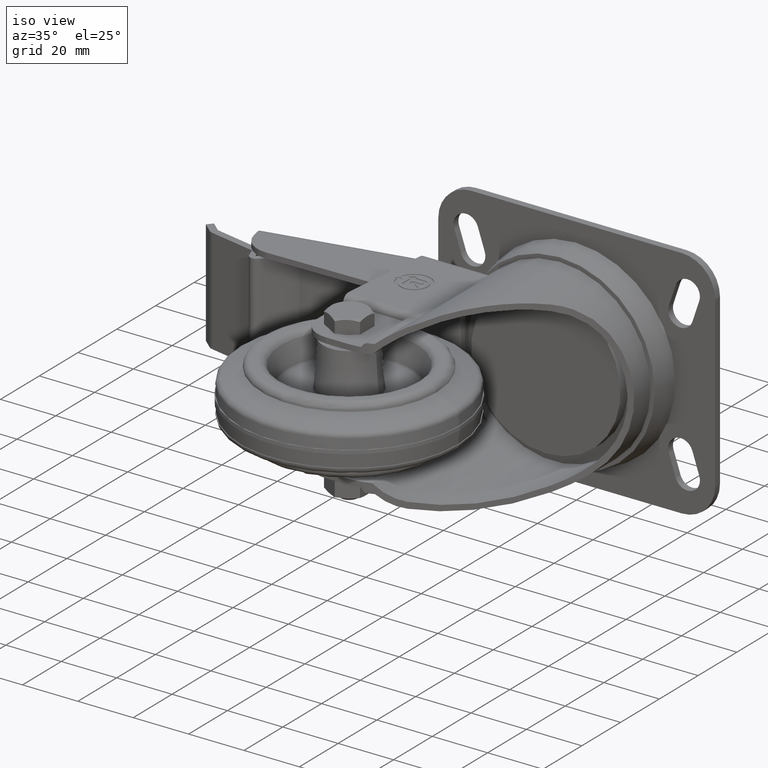
[diagram: clean part render]
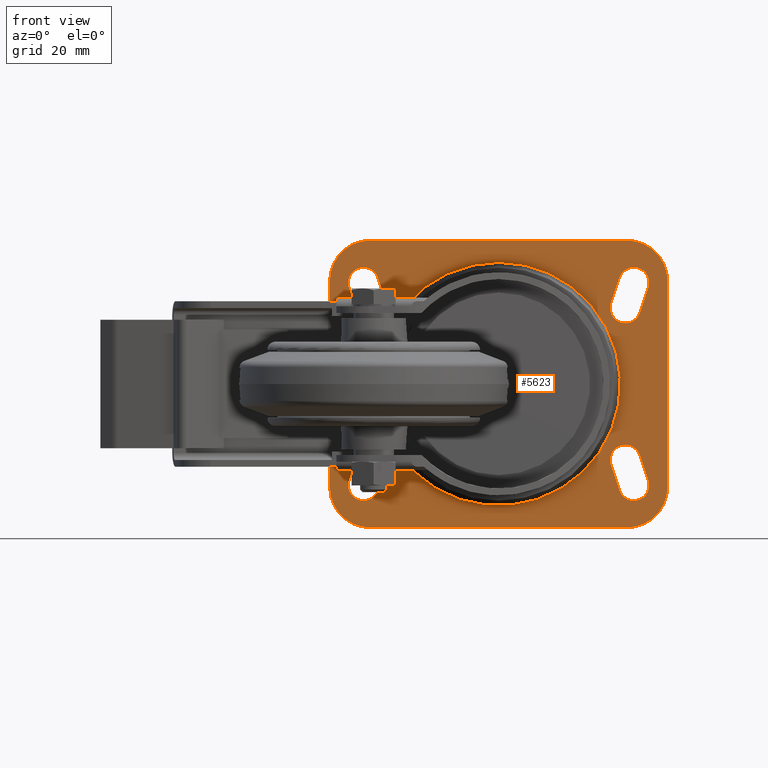
[diagram: tour spotlight — one face highlighted and labeled with its STEP entity id]
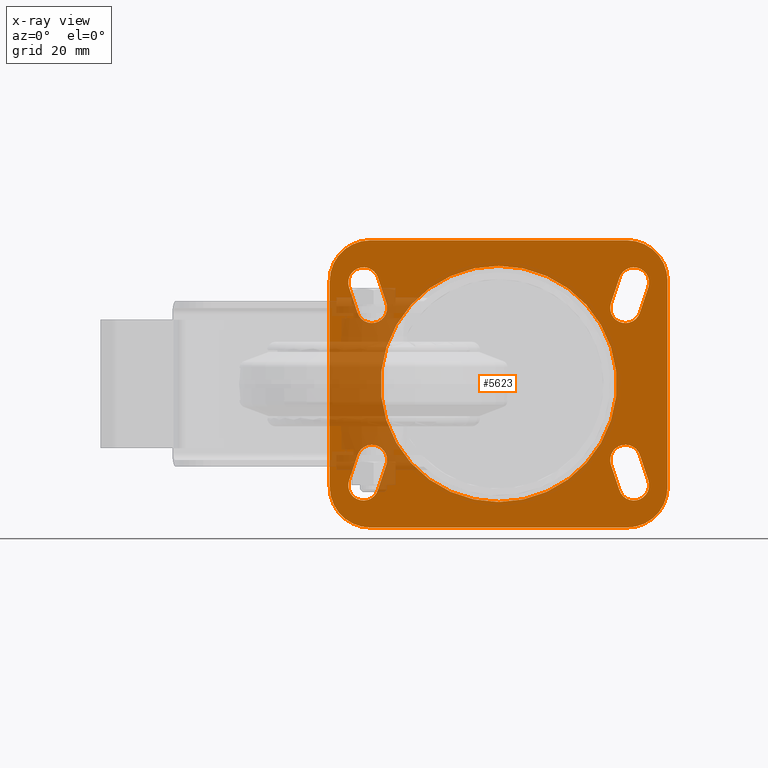
[diagram: x-ray of the same camera — body ghosted, this tour face saturated]
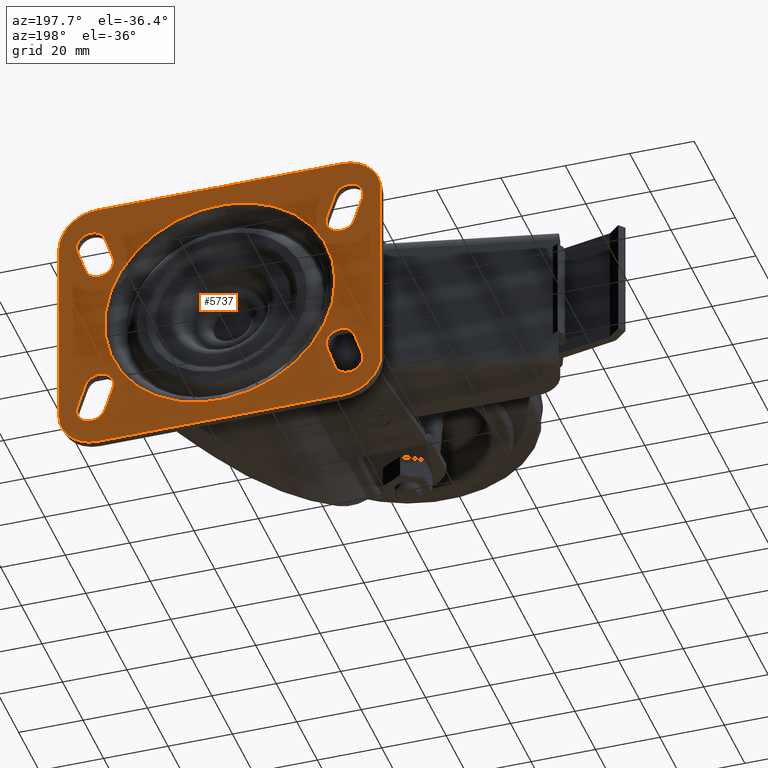
[diagram: tour spotlight — one face highlighted and labeled with its STEP entity id]
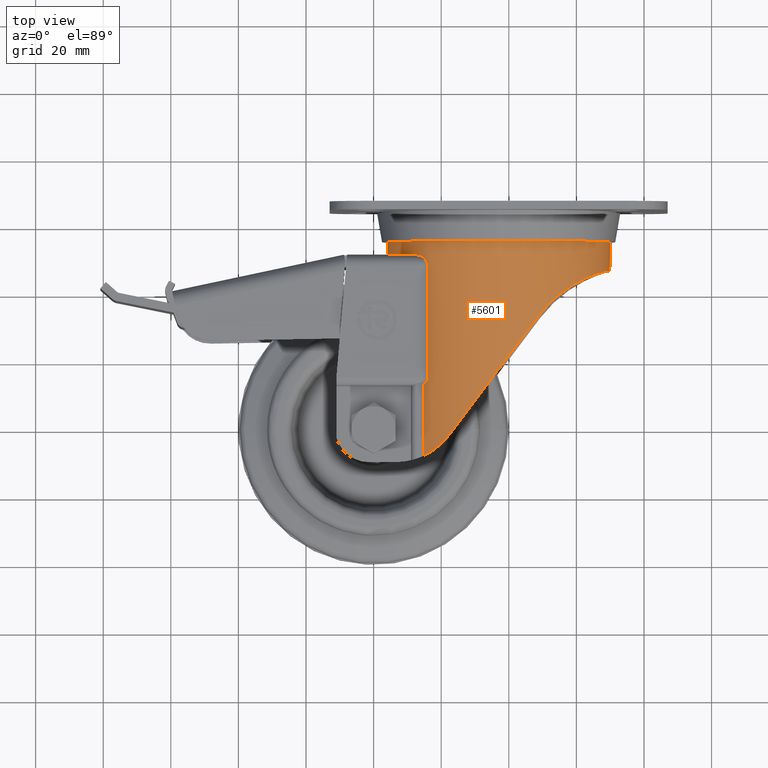
[diagram: tour spotlight — one face highlighted and labeled with its STEP entity id]
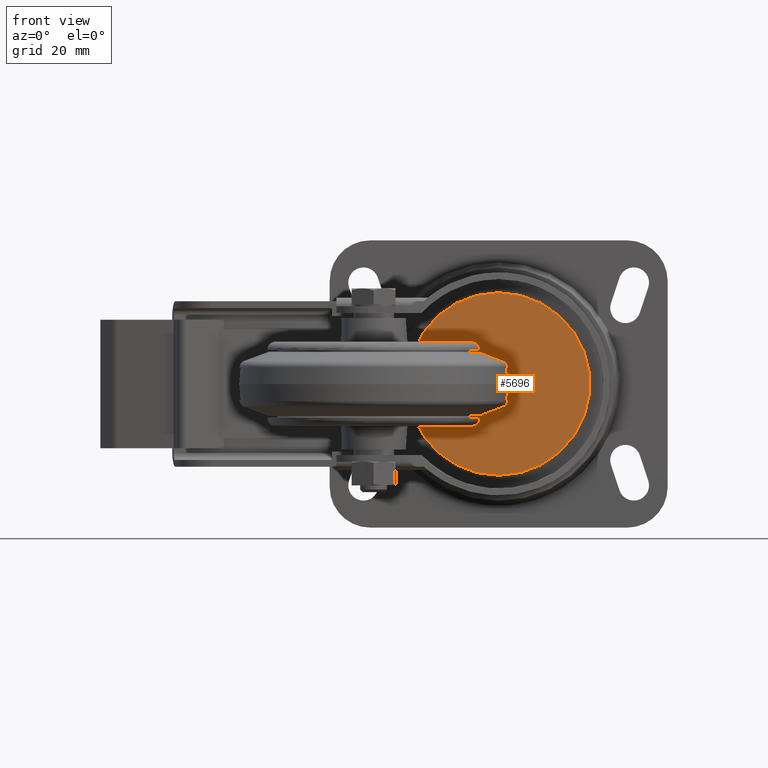
[diagram: tour spotlight — one face highlighted and labeled with its STEP entity id]
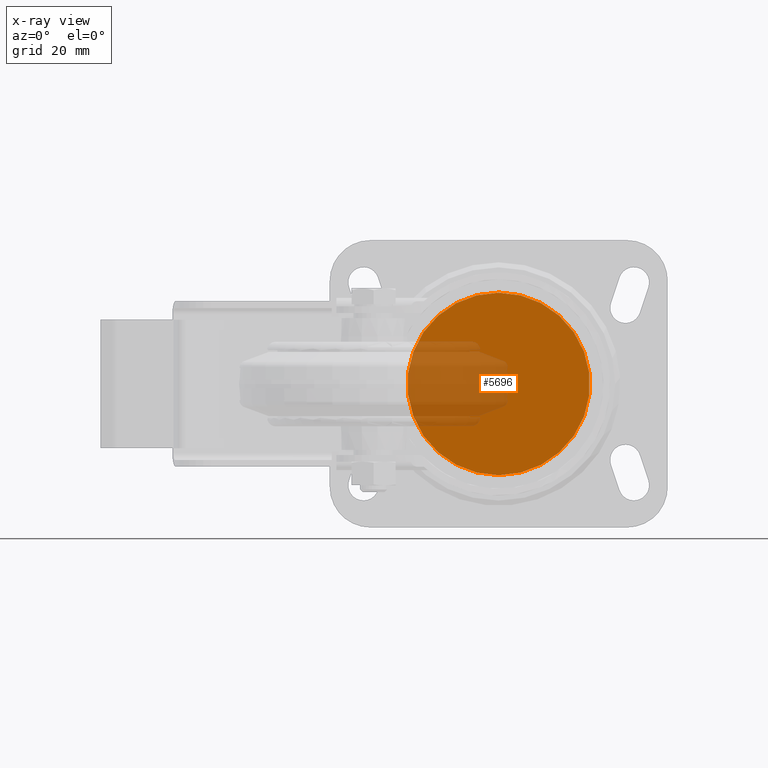
[diagram: x-ray of the same camera — body ghosted, this tour face saturated]
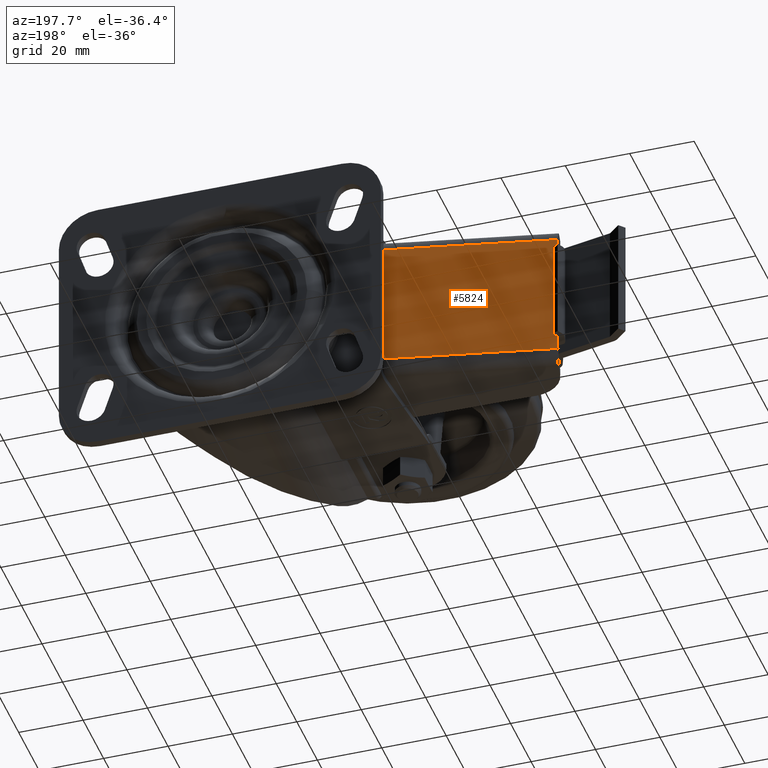
[diagram: tour spotlight — one face highlighted and labeled with its STEP entity id]
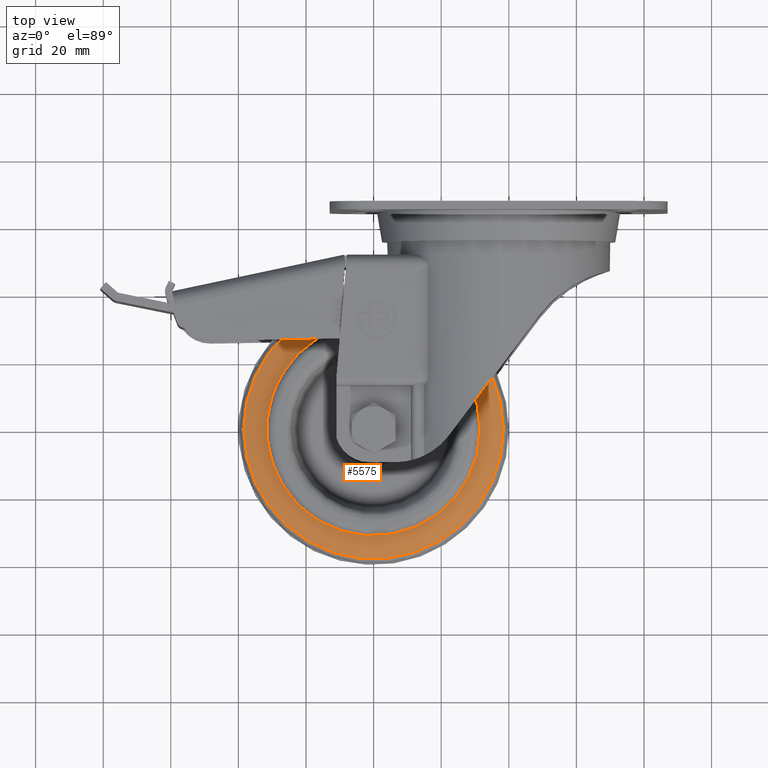
[diagram: tour spotlight — one face highlighted and labeled with its STEP entity id]
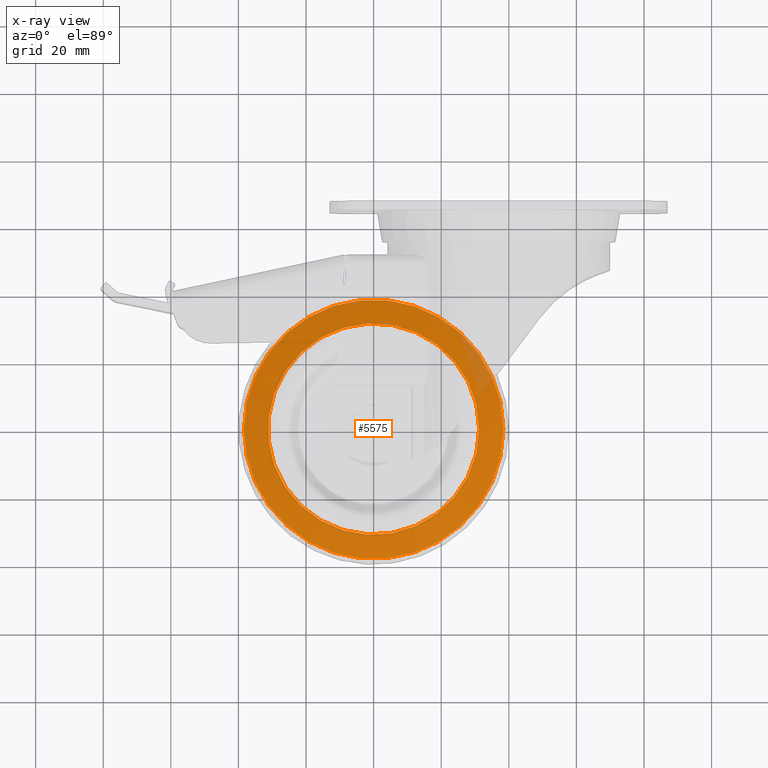
[diagram: x-ray of the same camera — body ghosted, this tour face saturated]
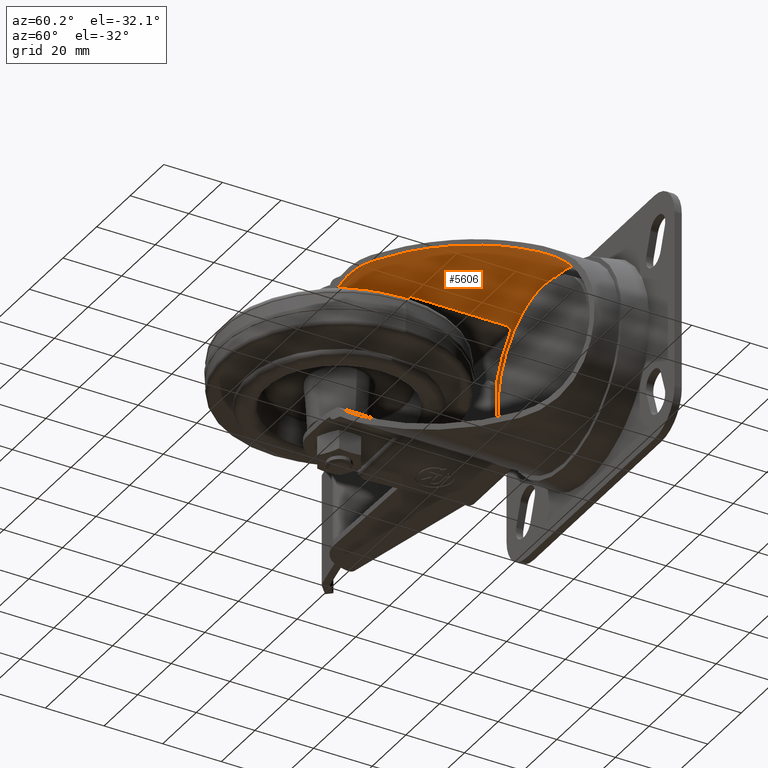
[diagram: tour spotlight — one face highlighted and labeled with its STEP entity id]
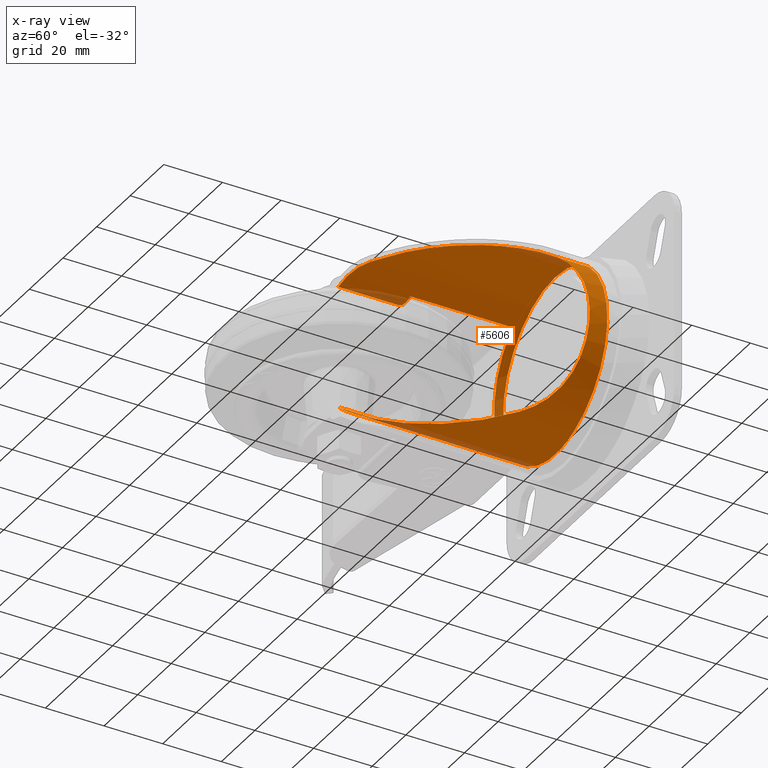
[diagram: x-ray of the same camera — body ghosted, this tour face saturated]
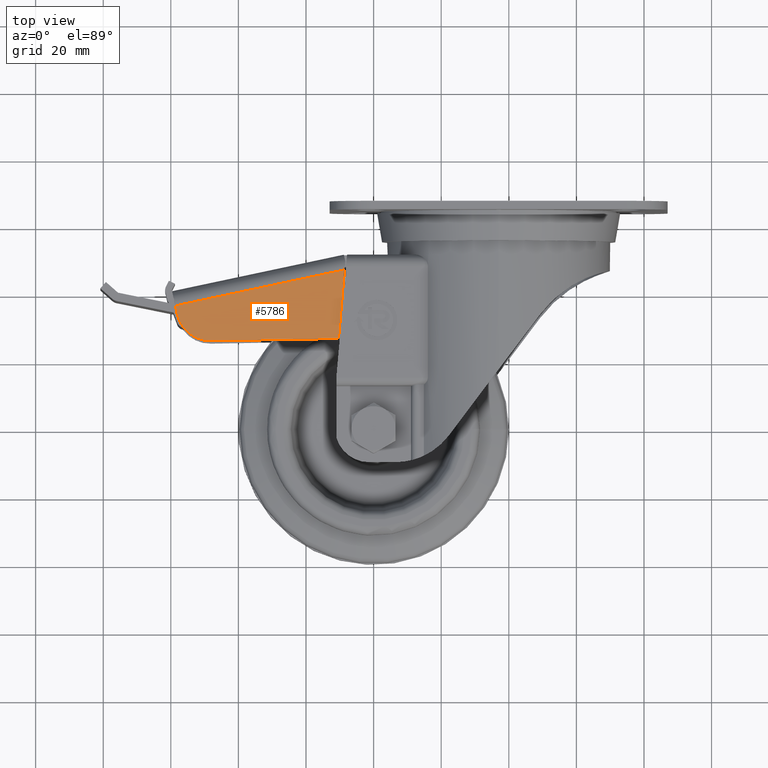
[diagram: tour spotlight — one face highlighted and labeled with its STEP entity id]
A machine part: a face-by-face anatomy tour. The part has 326 B-rep faces; the first image is the clean iso view, then the 8 largest visible faces are spotlighted one at a time (largest first), each with its STEP entity span.

Face 1 — front view, entity #5623. An x-ray twin of the same camera follows (body ghosted, this face saturated) — the face is partly hidden behind the body. In plain terms, the highlighted planar face has unit normal (0, 1, 0).
Definition (entity closure, byte-faithful):
#629=LINE('',#8757,#1135);
#630=LINE('',#8761,#1136);
#631=LINE('',#8765,#1137);
#632=LINE('',#8769,#1138);
#633=LINE('',#8773,#1139);
#634=LINE('',#8777,#1140);
#635=LINE('',#8781,#1141);
#636=LINE('',#8785,#1142);
#637=LINE('',#8789,#1143);
#638=LINE('',#8793,#1144);
#639=LINE('',#8797,#1145);
#640=LINE('',#8801,#1146);
#1135=VECTOR('',#6926,61.);
#1136=VECTOR('',#6929,76.);
#1137=VECTOR('',#6932,61.);
#1138=VECTOR('',#6935,76.);
#1139=VECTOR('',#6938,7.90569415042095);
#1140=VECTOR('',#6941,7.90569415042095);
#1141=VECTOR('',#6944,7.90569415042095);
#1142=VECTOR('',#6947,7.90569415042095);
#1143=VECTOR('',#6950,7.90569415042095);
#1144=VECTOR('',#6953,7.90569415042095);
#1145=VECTOR('',#6956,7.90569415042095);
#1146=VECTOR('',#6959,7.90569415042095);
#1532=FACE_BOUND('',#2048,.T.);
#1533=FACE_BOUND('',#2049,.T.);
#1534=FACE_BOUND('',#2050,.T.);
#1535=FACE_BOUND('',#2051,.T.);
#1536=FACE_BOUND('',#2052,.T.);
#1669=FACE_OUTER_BOUND('',#2047,.T.);
#2047=EDGE_LOOP('',(#4219,#4220,#4221,#4222,#4223,#4224,#4225,#4226));
#2048=EDGE_LOOP('',(#4227,#4228,#4229,#4230));
#2049=EDGE_LOOP('',(#4231,#4232,#4233,#4234));
#2050=EDGE_LOOP('',(#4235,#4236,#4237,#4238));
#2051=EDGE_LOOP('',(#4239,#4240,#4241,#4242));
#2052=EDGE_LOOP('',(#4243));
#2407=CIRCLE('',#6044,12.);
#2408=CIRCLE('',#6045,12.);
#2409=CIRCLE('',#6046,12.);
#2410=CIRCLE('',#6047,12.);
#2411=CIRCLE('',#6048,4.50000000000001);
#2412=CIRCLE('',#6049,4.50000000000001);
#2413=CIRCLE('',#6050,4.5);
#2414=CIRCLE('',#6051,4.49999999999999);
#2415=CIRCLE('',#6052,4.50000000000001);
#2416=CIRCLE('',#6053,4.5);
#2417=CIRCLE('',#6054,4.5);
#2418=CIRCLE('',#6055,4.5);
#2419=CIRCLE('',#6056,34.9386058215852);
#2735=VERTEX_POINT('',#8755);
#2736=VERTEX_POINT('',#8756);
#2737=VERTEX_POINT('',#8758);
#2738=VERTEX_POINT('',#8760);
#2739=VERTEX_POINT('',#8762);
#2740=VERTEX_POINT('',#8764);
#2741=VERTEX_POINT('',#8766);
#2742=VERTEX_POINT('',#8768);
#2743=VERTEX_POINT('',#8771);
#2744=VERTEX_POINT('',#8772);
#2745=VERTEX_POINT('',#8774);
#2746=VERTEX_POINT('',#8776);
#2747=VERTEX_POINT('',#8779);
#2748=VERTEX_POINT('',#8780);
#2749=VERTEX_POINT('',#8782);
#2750=VERTEX_POINT('',#8784);
#2751=VERTEX_POINT('',#8787);
#2752=VERTEX_POINT('',#8788);
#2753=VERTEX_POINT('',#8790);
#2754=VERTEX_POINT('',#8792);
#2755=VERTEX_POINT('',#8795);
#2756=VERTEX_POINT('',#8796);
#2757=VERTEX_POINT('',#8798);
#2758=VERTEX_POINT('',#8800);
#2759=VERTEX_POINT('',#8803);
#3306=EDGE_CURVE('',#2735,#2736,#629,.T.);
#3307=EDGE_CURVE('',#2737,#2735,#2407,.T.);
#3308=EDGE_CURVE('',#2738,#2737,#630,.T.);
#3309=EDGE_CURVE('',#2739,#2738,#2408,.T.);
#3310=EDGE_CURVE('',#2740,#2739,#631,.T.);
#3311=EDGE_CURVE('',#2741,#2740,#2409,.T.);
#3312=EDGE_CURVE('',#2742,#2741,#632,.T.);
#3313=EDGE_CURVE('',#2736,#2742,#2410,.T.);
#3314=EDGE_CURVE('',#2743,#2744,#633,.T.);
#3315=EDGE_CURVE('',#2744,#2745,#2411,.T.);
#3316=EDGE_CURVE('',#2745,#2746,#634,.T.);
#3317=EDGE_CURVE('',#2746,#2743,#2412,.T.);
#3318=EDGE_CURVE('',#2747,#2748,#635,.T.);
#3319=EDGE_CURVE('',#2748,#2749,#2413,.T.);
#3320=EDGE_CURVE('',#2749,#2750,#636,.T.);
#3321=EDGE_CURVE('',#2750,#2747,#2414,.T.);
#3322=EDGE_CURVE('',#2751,#2752,#637,.T.);
#3323=EDGE_CURVE('',#2752,#2753,#2415,.T.);
#3324=EDGE_CURVE('',#2753,#2754,#638,.T.);
#3325=EDGE_CURVE('',#2754,#2751,#2416,.T.);
#3326=EDGE_CURVE('',#2755,#2756,#639,.T.);
#3327=EDGE_CURVE('',#2756,#2757,#2417,.T.);
#3328=EDGE_CURVE('',#2757,#2758,#640,.T.);
#3329=EDGE_CURVE('',#2758,#2755,#2418,.T.);
#3330=EDGE_CURVE('',#2759,#2759,#2419,.F.);
#4219=ORIENTED_EDGE('',*,*,#3306,.F.);
#4220=ORIENTED_EDGE('',*,*,#3307,.F.);
#4221=ORIENTED_EDGE('',*,*,#3308,.F.);
#4222=ORIENTED_EDGE('',*,*,#3309,.F.);
#4223=ORIENTED_EDGE('',*,*,#3310,.F.);
#4224=ORIENTED_EDGE('',*,*,#3311,.F.);
#4225=ORIENTED_EDGE('',*,*,#3312,.F.);
#4226=ORIENTED_EDGE('',*,*,#3313,.F.);
#4227=ORIENTED_EDGE('',*,*,#3314,.T.);
#4228=ORIENTED_EDGE('',*,*,#3315,.T.);
#4229=ORIENTED_EDGE('',*,*,#3316,.T.);
#4230=ORIENTED_EDGE('',*,*,#3317,.T.);
#4231=ORIENTED_EDGE('',*,*,#3318,.T.);
#4232=ORIENTED_EDGE('',*,*,#3319,.T.);
#4233=ORIENTED_EDGE('',*,*,#3320,.T.);
#4234=ORIENTED_EDGE('',*,*,#3321,.T.);
#4235=ORIENTED_EDGE('',*,*,#3322,.T.);
#4236=ORIENTED_EDGE('',*,*,#3323,.T.);
#4237=ORIENTED_EDGE('',*,*,#3324,.T.);
#4238=ORIENTED_EDGE('',*,*,#3325,.T.);
#4239=ORIENTED_EDGE('',*,*,#3326,.T.);
#4240=ORIENTED_EDGE('',*,*,#3327,.T.);
#4241=ORIENTED_EDGE('',*,*,#3328,.T.);
#4242=ORIENTED_EDGE('',*,*,#3329,.T.);
#4243=ORIENTED_EDGE('',*,*,#3330,.T.);
#5381=PLANE('',#6043);
#5623=ADVANCED_FACE('',(#1669,#1532,#1533,#1534,#1535,#1536),#5381,.F.);
#6043=AXIS2_PLACEMENT_3D('',#8754,#6924,#6925);
#6044=AXIS2_PLACEMENT_3D('',#8759,#6927,#6928);
#6045=AXIS2_PLACEMENT_3D('',#8763,#6930,#6931);
#6046=AXIS2_PLACEMENT_3D('',#8767,#6933,#6934);
#6047=AXIS2_PLACEMENT_3D('',#8770,#6936,#6937);
#6048=AXIS2_PLACEMENT_3D('',#8775,#6939,#6940);
#6049=AXIS2_PLACEMENT_3D('',#8778,#6942,#6943);
#6050=AXIS2_PLACEMENT_3D('',#8783,#6945,#6946);
#6051=AXIS2_PLACEMENT_3D('',#8786,#6948,#6949);
#6052=AXIS2_PLACEMENT_3D('',#8791,#6951,#6952);
#6053=AXIS2_PLACEMENT_3D('',#8794,#6954,#6955);
#6054=AXIS2_PLACEMENT_3D('',#8799,#6957,#6958);
#6055=AXIS2_PLACEMENT_3D('',#8802,#6960,#6961);
#6056=AXIS2_PLACEMENT_3D('',#8804,#6962,#6963);
#6924=DIRECTION('center_axis',(0.,1.,0.));
#6925=DIRECTION('ref_axis',(0.,0.,1.));
#6926=DIRECTION('',(0.,0.,1.));
#6927=DIRECTION('center_axis',(0.,1.,0.));
#6928=DIRECTION('ref_axis',(1.,0.,0.));
#6929=DIRECTION('',(-1.,0.,0.));
#6930=DIRECTION('center_axis',(0.,1.,0.));
#6931=DIRECTION('ref_axis',(1.,0.,0.));
#6932=DIRECTION('',(0.,0.,-1.));
#6933=DIRECTION('center_axis',(0.,1.,0.));
#6934=DIRECTION('ref_axis',(1.,0.,0.));
#6935=DIRECTION('',(1.,0.,0.));
#6936=DIRECTION('center_axis',(0.,1.,0.));
#6937=DIRECTION('ref_axis',(1.,0.,0.));
#6938=DIRECTION('',(-0.31622776601684,0.,0.948683298050513));
#6939=DIRECTION('center_axis',(0.,1.,0.));
#6940=DIRECTION('ref_axis',(1.,0.,0.));
#6941=DIRECTION('',(0.316227766016838,0.,-0.948683298050514));
#6942=DIRECTION('center_axis',(0.,1.,0.));
#6943=DIRECTION('ref_axis',(1.,0.,0.));
#6944=DIRECTION('',(-0.316227766016838,0.,-0.948683298050514));
#6945=DIRECTION('center_axis',(0.,1.,0.));
#6946=DIRECTION('ref_axis',(1.,0.,0.));
#6947=DIRECTION('',(0.316227766016837,0.,0.948683298050514));
#6948=DIRECTION('center_axis',(0.,1.,0.));
#6949=DIRECTION('ref_axis',(1.,0.,0.));
#6950=DIRECTION('',(-0.316227766016838,0.,0.948683298050514));
#6951=DIRECTION('center_axis',(0.,1.,0.));
#6952=DIRECTION('ref_axis',(1.,0.,0.));
#6953=DIRECTION('',(0.316227766016838,0.,-0.948683298050514));
#6954=DIRECTION('center_axis',(0.,1.,0.));
#6955=DIRECTION('ref_axis',(1.,0.,0.));
#6956=DIRECTION('',(-0.316227766016838,0.,-0.948683298050514));
#6957=DIRECTION('center_axis',(0.,1.,0.));
#6958=DIRECTION('ref_axis',(1.,0.,0.));
#6959=DIRECTION('',(0.316227766016838,0.,0.948683298050514));
#6960=DIRECTION('center_axis',(0.,1.,0.));
#6961=DIRECTION('ref_axis',(1.,0.,0.));
#6962=DIRECTION('center_axis',(0.,-1.,0.));
#6963=DIRECTION('ref_axis',(0.,0.,-1.));
#8754=CARTESIAN_POINT('Origin',(-0.99999999999999,64.5,30.5));
#8755=CARTESIAN_POINT('',(-13.,64.5,-30.5));
#8756=CARTESIAN_POINT('',(-13.,64.5,30.5));
#8757=CARTESIAN_POINT('',(-13.,64.5,-30.5));
#8758=CARTESIAN_POINT('',(-1.,64.5,-42.5));
#8759=CARTESIAN_POINT('Origin',(-0.999999999999982,64.5,-30.5));
#8760=CARTESIAN_POINT('',(75.,64.5,-42.5));
#8761=CARTESIAN_POINT('',(75.,64.5,-42.5));
#8762=CARTESIAN_POINT('',(87.,64.5,-30.5));
#8763=CARTESIAN_POINT('Origin',(75.,64.5,-30.5));
#8764=CARTESIAN_POINT('',(87.,64.5,30.5));
#8765=CARTESIAN_POINT('',(87.,64.5,30.5));
#8766=CARTESIAN_POINT('',(75.,64.5,42.5));
#8767=CARTESIAN_POINT('Origin',(75.,64.5,30.5));
#8768=CARTESIAN_POINT('',(-0.999999999999993,64.5,42.5));
#8769=CARTESIAN_POINT('',(-1.,64.5,42.5));
#8770=CARTESIAN_POINT('Origin',(-0.99999999999999,64.5,30.5));
#8771=CARTESIAN_POINT('',(72.7309251587727,64.5,-31.4230249470758));
#8772=CARTESIAN_POINT('',(70.2309251587727,64.5,-23.9230249470758));
#8773=CARTESIAN_POINT('',(72.7309251587727,64.5,-31.4230249470758));
#8774=CARTESIAN_POINT('',(78.7690748412273,64.5,-21.0769750529242));
#8775=CARTESIAN_POINT('Origin',(74.4999999501312,64.5,-22.4999998503935));
#8776=CARTESIAN_POINT('',(81.2690748412273,64.5,-28.5769750529242));
#8777=CARTESIAN_POINT('',(78.7690748412273,64.5,-21.0769750529242));
#8778=CARTESIAN_POINT('Origin',(76.9999999057568,64.5,-29.9999997172703));
#8779=CARTESIAN_POINT('',(81.2690748412273,64.5,28.5769750529242));
#8780=CARTESIAN_POINT('',(78.7690748412273,64.5,21.0769750529242));
#8781=CARTESIAN_POINT('',(81.2690748412273,64.5,28.5769750529242));
#8782=CARTESIAN_POINT('',(70.2309251587727,64.5,23.9230249470758));
#8783=CARTESIAN_POINT('Origin',(74.5000000679597,64.5,22.5000002038792));
#8784=CARTESIAN_POINT('',(72.7309251587727,64.5,31.4230249470758));
#8785=CARTESIAN_POINT('',(70.2309251587727,64.5,23.9230249470758));
#8786=CARTESIAN_POINT('Origin',(77.,64.5,30.));
#8787=CARTESIAN_POINT('',(-4.76907484122732,64.5,21.0769750529242));
#8788=CARTESIAN_POINT('',(-7.26907484122732,64.5,28.5769750529242));
#8789=CARTESIAN_POINT('',(-4.76907484122732,64.5,21.0769750529242));
#8790=CARTESIAN_POINT('',(1.26907484122732,64.5,31.4230249470758));
#8791=CARTESIAN_POINT('Origin',(-3.,64.5,30.));
#8792=CARTESIAN_POINT('',(3.76907484122732,64.5,23.9230249470758));
#8793=CARTESIAN_POINT('',(1.26907484122732,64.5,31.4230249470758));
#8794=CARTESIAN_POINT('Origin',(-0.500000000000002,64.5,22.5));
#8795=CARTESIAN_POINT('',(3.76907484122731,64.5,-23.9230249470758));
#8796=CARTESIAN_POINT('',(1.26907484122731,64.5,-31.4230249470758));
#8797=CARTESIAN_POINT('',(3.76907484122731,64.5,-23.9230249470758));
#8798=CARTESIAN_POINT('',(-7.26907484122732,64.5,-28.5769750529242));
#8799=CARTESIAN_POINT('Origin',(-3.,64.5,-30.));
#8800=CARTESIAN_POINT('',(-4.76907484122731,64.5,-21.0769750529242));
#8801=CARTESIAN_POINT('',(-7.26907484122731,64.5,-28.5769750529242));
#8802=CARTESIAN_POINT('Origin',(-0.5,64.5,-22.5));
#8803=CARTESIAN_POINT('',(37.,64.5,-34.9386058215852));
#8804=CARTESIAN_POINT('Origin',(37.,64.5,0.));

Face 2 — auxiliary view, entity #5737. In plain terms, the highlighted planar face has unit normal (0, 1, 0).
Definition (entity closure, byte-faithful):
#642=LINE('',#8832,#1148);
#756=LINE('',#9159,#1262);
#759=LINE('',#9166,#1265);
#760=LINE('',#9169,#1266);
#763=LINE('',#9176,#1269);
#764=LINE('',#9179,#1270);
#767=LINE('',#9186,#1273);
#768=LINE('',#9189,#1274);
#771=LINE('',#9196,#1277);
#772=LINE('',#9199,#1278);
#775=LINE('',#9207,#1281);
#778=LINE('',#9215,#1284);
#1148=VECTOR('',#6969,61.);
#1262=VECTOR('',#7347,7.90569415042095);
#1265=VECTOR('',#7356,7.90569415042095);
#1266=VECTOR('',#7359,7.90569415042095);
#1269=VECTOR('',#7368,7.90569415042095);
#1270=VECTOR('',#7371,7.90569415042095);
#1273=VECTOR('',#7380,7.90569415042095);
#1274=VECTOR('',#7383,7.90569415042095);
#1277=VECTOR('',#7392,7.90569415042095);
#1278=VECTOR('',#7395,76.);
#1281=VECTOR('',#7404,61.);
#1284=VECTOR('',#7413,76.);
#1557=FACE_BOUND('',#2187,.T.);
#1558=FACE_BOUND('',#2188,.T.);
#1559=FACE_BOUND('',#2189,.T.);
#1560=FACE_BOUND('',#2190,.T.);
#1561=FACE_BOUND('',#2191,.T.);
#1783=FACE_OUTER_BOUND('',#2186,.T.);
#2186=EDGE_LOOP('',(#4721,#4722,#4723,#4724,#4725,#4726,#4727,#4728));
#2187=EDGE_LOOP('',(#4729,#4730,#4731,#4732));
#2188=EDGE_LOOP('',(#4733,#4734,#4735,#4736));
#2189=EDGE_LOOP('',(#4737,#4738,#4739,#4740));
#2190=EDGE_LOOP('',(#4741,#4742,#4743,#4744));
#2191=EDGE_LOOP('',(#4745));
#2434=CIRCLE('',#6147,35.7868487091199);
#2451=CIRCLE('',#6181,12.);
#2452=CIRCLE('',#6183,4.5);
#2453=CIRCLE('',#6185,4.50000000000001);
#2454=CIRCLE('',#6187,4.5);
#2455=CIRCLE('',#6189,4.50000000000001);
#2456=CIRCLE('',#6192,4.5);
#2457=CIRCLE('',#6196,4.5);
#2458=CIRCLE('',#6200,4.49999999999999);
#2459=CIRCLE('',#6204,4.50000000000001);
#2460=CIRCLE('',#6208,12.);
#2461=CIRCLE('',#6211,12.);
#2462=CIRCLE('',#6214,12.);
#2762=VERTEX_POINT('',#8830);
#2763=VERTEX_POINT('',#8831);
#2818=VERTEX_POINT('',#9079);
#2835=VERTEX_POINT('',#9130);
#2836=VERTEX_POINT('',#9134);
#2837=VERTEX_POINT('',#9135);
#2838=VERTEX_POINT('',#9140);
#2839=VERTEX_POINT('',#9141);
#2840=VERTEX_POINT('',#9146);
#2841=VERTEX_POINT('',#9147);
#2842=VERTEX_POINT('',#9152);
#2843=VERTEX_POINT('',#9153);
#2844=VERTEX_POINT('',#9158);
#2845=VERTEX_POINT('',#9162);
#2846=VERTEX_POINT('',#9168);
#2847=VERTEX_POINT('',#9172);
#2848=VERTEX_POINT('',#9178);
#2849=VERTEX_POINT('',#9182);
#2850=VERTEX_POINT('',#9188);
#2851=VERTEX_POINT('',#9192);
#2852=VERTEX_POINT('',#9198);
#2853=VERTEX_POINT('',#9202);
#2854=VERTEX_POINT('',#9206);
#2855=VERTEX_POINT('',#9210);
#2856=VERTEX_POINT('',#9214);
#3334=EDGE_CURVE('',#2762,#2763,#642,.T.);
#3455=EDGE_CURVE('',#2818,#2818,#2434,.T.);
#3472=EDGE_CURVE('',#2835,#2762,#2451,.T.);
#3474=EDGE_CURVE('',#2836,#2837,#2452,.T.);
#3477=EDGE_CURVE('',#2838,#2839,#2453,.T.);
#3480=EDGE_CURVE('',#2840,#2841,#2454,.T.);
#3483=EDGE_CURVE('',#2842,#2843,#2455,.T.);
#3486=EDGE_CURVE('',#2837,#2844,#756,.T.);
#3488=EDGE_CURVE('',#2844,#2845,#2456,.T.);
#3490=EDGE_CURVE('',#2845,#2836,#759,.T.);
#3491=EDGE_CURVE('',#2839,#2846,#760,.T.);
#3493=EDGE_CURVE('',#2846,#2847,#2457,.T.);
#3495=EDGE_CURVE('',#2847,#2838,#763,.T.);
#3496=EDGE_CURVE('',#2841,#2848,#764,.T.);
#3498=EDGE_CURVE('',#2848,#2849,#2458,.T.);
#3500=EDGE_CURVE('',#2849,#2840,#767,.T.);
#3501=EDGE_CURVE('',#2843,#2850,#768,.T.);
#3503=EDGE_CURVE('',#2850,#2851,#2459,.T.);
#3505=EDGE_CURVE('',#2851,#2842,#771,.T.);
#3506=EDGE_CURVE('',#2852,#2835,#772,.T.);
#3508=EDGE_CURVE('',#2853,#2852,#2460,.T.);
#3510=EDGE_CURVE('',#2854,#2853,#775,.T.);
#3512=EDGE_CURVE('',#2855,#2854,#2461,.T.);
#3514=EDGE_CURVE('',#2856,#2855,#778,.T.);
#3516=EDGE_CURVE('',#2763,#2856,#2462,.T.);
#4721=ORIENTED_EDGE('',*,*,#3506,.T.);
#4722=ORIENTED_EDGE('',*,*,#3472,.T.);
#4723=ORIENTED_EDGE('',*,*,#3334,.T.);
#4724=ORIENTED_EDGE('',*,*,#3516,.T.);
#4725=ORIENTED_EDGE('',*,*,#3514,.T.);
#4726=ORIENTED_EDGE('',*,*,#3512,.T.);
#4727=ORIENTED_EDGE('',*,*,#3510,.T.);
#4728=ORIENTED_EDGE('',*,*,#3508,.T.);
#4729=ORIENTED_EDGE('',*,*,#3483,.F.);
#4730=ORIENTED_EDGE('',*,*,#3505,.F.);
#4731=ORIENTED_EDGE('',*,*,#3503,.F.);
#4732=ORIENTED_EDGE('',*,*,#3501,.F.);
#4733=ORIENTED_EDGE('',*,*,#3496,.F.);
#4734=ORIENTED_EDGE('',*,*,#3480,.F.);
#4735=ORIENTED_EDGE('',*,*,#3500,.F.);
#4736=ORIENTED_EDGE('',*,*,#3498,.F.);
#4737=ORIENTED_EDGE('',*,*,#3493,.F.);
#4738=ORIENTED_EDGE('',*,*,#3491,.F.);
#4739=ORIENTED_EDGE('',*,*,#3477,.F.);
#4740=ORIENTED_EDGE('',*,*,#3495,.F.);
#4741=ORIENTED_EDGE('',*,*,#3490,.F.);
#4742=ORIENTED_EDGE('',*,*,#3488,.F.);
#4743=ORIENTED_EDGE('',*,*,#3486,.F.);
#4744=ORIENTED_EDGE('',*,*,#3474,.F.);
#4745=ORIENTED_EDGE('',*,*,#3455,.F.);
#5453=PLANE('',#6215);
#5737=ADVANCED_FACE('',(#1783,#1557,#1558,#1559,#1560,#1561),#5453,.T.);
#6147=AXIS2_PLACEMENT_3D('',#9080,#7250,#7251);
#6181=AXIS2_PLACEMENT_3D('',#9131,#7318,#7319);
#6183=AXIS2_PLACEMENT_3D('',#9136,#7323,#7324);
#6185=AXIS2_PLACEMENT_3D('',#9142,#7329,#7330);
#6187=AXIS2_PLACEMENT_3D('',#9148,#7335,#7336);
#6189=AXIS2_PLACEMENT_3D('',#9154,#7341,#7342);
#6192=AXIS2_PLACEMENT_3D('',#9163,#7351,#7352);
#6196=AXIS2_PLACEMENT_3D('',#9173,#7363,#7364);
#6200=AXIS2_PLACEMENT_3D('',#9183,#7375,#7376);
#6204=AXIS2_PLACEMENT_3D('',#9193,#7387,#7388);
#6208=AXIS2_PLACEMENT_3D('',#9203,#7399,#7400);
#6211=AXIS2_PLACEMENT_3D('',#9211,#7408,#7409);
#6214=AXIS2_PLACEMENT_3D('',#9218,#7417,#7418);
#6215=AXIS2_PLACEMENT_3D('',#9219,#7419,#7420);
#6969=DIRECTION('',(0.,0.,1.));
#7250=DIRECTION('center_axis',(7.986688628599E-15,1.,0.));
#7251=DIRECTION('ref_axis',(-1.,7.986688628599E-15,0.));
#7318=DIRECTION('center_axis',(0.,1.,0.));
#7319=DIRECTION('ref_axis',(1.,0.,0.));
#7323=DIRECTION('center_axis',(0.,1.,0.));
#7324=DIRECTION('ref_axis',(1.,0.,0.));
#7329=DIRECTION('center_axis',(0.,1.,0.));
#7330=DIRECTION('ref_axis',(1.,0.,0.));
#7335=DIRECTION('center_axis',(0.,1.,0.));
#7336=DIRECTION('ref_axis',(1.,0.,0.));
#7341=DIRECTION('center_axis',(0.,1.,0.));
#7342=DIRECTION('ref_axis',(1.,0.,0.));
#7347=DIRECTION('',(0.316227766016838,0.,0.948683298050514));
#7351=DIRECTION('center_axis',(0.,1.,0.));
#7352=DIRECTION('ref_axis',(1.,0.,0.));
#7356=DIRECTION('',(-0.316227766016838,0.,-0.948683298050514));
#7359=DIRECTION('',(0.316227766016838,0.,-0.948683298050514));
#7363=DIRECTION('center_axis',(0.,1.,0.));
#7364=DIRECTION('ref_axis',(1.,0.,0.));
#7368=DIRECTION('',(-0.316227766016838,0.,0.948683298050514));
#7371=DIRECTION('',(0.316227766016837,0.,0.948683298050514));
#7375=DIRECTION('center_axis',(0.,1.,0.));
#7376=DIRECTION('ref_axis',(1.,0.,0.));
#7380=DIRECTION('',(-0.316227766016838,0.,-0.948683298050514));
#7383=DIRECTION('',(0.316227766016838,0.,-0.948683298050514));
#7387=DIRECTION('center_axis',(0.,1.,0.));
#7388=DIRECTION('ref_axis',(1.,0.,0.));
#7392=DIRECTION('',(-0.31622776601684,0.,0.948683298050513));
#7395=DIRECTION('',(-1.,0.,0.));
#7399=DIRECTION('center_axis',(0.,1.,0.));
#7400=DIRECTION('ref_axis',(1.,0.,0.));
#7404=DIRECTION('',(0.,0.,-1.));
#7408=DIRECTION('center_axis',(0.,1.,0.));
#7409=DIRECTION('ref_axis',(1.,0.,0.));
#7413=DIRECTION('',(1.,0.,0.));
#7417=DIRECTION('center_axis',(0.,1.,0.));
#7418=DIRECTION('ref_axis',(1.,0.,0.));
#7419=DIRECTION('center_axis',(0.,1.,0.));
#7420=DIRECTION('ref_axis',(0.,0.,1.));
#8830=CARTESIAN_POINT('',(-13.,67.,-30.5));
#8831=CARTESIAN_POINT('',(-13.,67.,30.5));
#8832=CARTESIAN_POINT('',(-13.,67.,-30.5));
#9079=CARTESIAN_POINT('',(1.21315129088003,67.,0.));
#9080=CARTESIAN_POINT('Origin',(36.9999999999999,66.9999999999997,0.));
#9130=CARTESIAN_POINT('',(-1.,67.,-42.5));
#9131=CARTESIAN_POINT('Origin',(-0.999999999999982,67.,-30.5));
#9134=CARTESIAN_POINT('',(1.26907484122731,67.,-31.4230249470758));
#9135=CARTESIAN_POINT('',(-7.26907484122732,67.,-28.5769750529242));
#9136=CARTESIAN_POINT('Origin',(-3.,67.,-30.));
#9140=CARTESIAN_POINT('',(-7.26907484122732,67.,28.5769750529242));
#9141=CARTESIAN_POINT('',(1.26907484122732,67.,31.4230249470758));
#9142=CARTESIAN_POINT('Origin',(-3.,67.,30.));
#9146=CARTESIAN_POINT('',(78.7690748412273,67.,21.0769750529242));
#9147=CARTESIAN_POINT('',(70.2309251587727,67.,23.9230249470758));
#9148=CARTESIAN_POINT('Origin',(74.5000000679597,67.,22.5000002038792));
#9152=CARTESIAN_POINT('',(70.2309251587727,67.,-23.9230249470758));
#9153=CARTESIAN_POINT('',(78.7690748412273,67.,-21.0769750529242));
#9154=CARTESIAN_POINT('Origin',(74.4999999501312,67.,-22.4999998503935));
#9158=CARTESIAN_POINT('',(-4.76907484122731,67.,-21.0769750529242));
#9159=CARTESIAN_POINT('',(-7.26907484122731,67.,-28.5769750529242));
#9162=CARTESIAN_POINT('',(3.76907484122731,67.,-23.9230249470758));
#9163=CARTESIAN_POINT('Origin',(-0.5,67.,-22.5));
#9166=CARTESIAN_POINT('',(3.76907484122731,67.,-23.9230249470758));
#9168=CARTESIAN_POINT('',(3.76907484122732,67.,23.9230249470758));
#9169=CARTESIAN_POINT('',(1.26907484122732,67.,31.4230249470758));
#9172=CARTESIAN_POINT('',(-4.76907484122732,67.,21.0769750529242));
#9173=CARTESIAN_POINT('Origin',(-0.500000000000002,67.,22.5));
#9176=CARTESIAN_POINT('',(-4.76907484122732,67.,21.0769750529242));
#9178=CARTESIAN_POINT('',(72.7309251587727,67.,31.4230249470758));
#9179=CARTESIAN_POINT('',(70.2309251587727,67.,23.9230249470758));
#9182=CARTESIAN_POINT('',(81.2690748412273,67.,28.5769750529242));
#9183=CARTESIAN_POINT('Origin',(77.,67.,30.));
#9186=CARTESIAN_POINT('',(81.2690748412273,67.,28.5769750529242));
#9188=CARTESIAN_POINT('',(81.2690748412273,67.,-28.5769750529242));
#9189=CARTESIAN_POINT('',(78.7690748412273,67.,-21.0769750529242));
#9192=CARTESIAN_POINT('',(72.7309251587727,67.,-31.4230249470758));
#9193=CARTESIAN_POINT('Origin',(76.9999999057568,67.,-29.9999997172703));
#9196=CARTESIAN_POINT('',(72.7309251587727,67.,-31.4230249470758));
#9198=CARTESIAN_POINT('',(75.,67.,-42.5));
#9199=CARTESIAN_POINT('',(75.,67.,-42.5));
#9202=CARTESIAN_POINT('',(87.,67.,-30.5));
#9203=CARTESIAN_POINT('Origin',(75.,67.,-30.5));
#9206=CARTESIAN_POINT('',(87.,67.,30.5));
#9207=CARTESIAN_POINT('',(87.,67.,30.5));
#9210=CARTESIAN_POINT('',(75.,67.,42.5));
#9211=CARTESIAN_POINT('Origin',(75.,67.,30.5));
#9214=CARTESIAN_POINT('',(-0.999999999999993,67.,42.5));
#9215=CARTESIAN_POINT('',(-1.,67.,42.5));
#9218=CARTESIAN_POINT('Origin',(-0.99999999999999,67.,30.5));
#9219=CARTESIAN_POINT('Origin',(-0.99999999999999,67.,30.5));

Face 3 — top view, entity #5601. In plain terms, the highlighted cylindrical surface (bore or boss wall) has radius 33 mm, axis along (0, -1, 0).
Definition (entity closure, byte-faithful):
#74=ELLIPSE('',#5992,54.834124657042,33.);
#75=ELLIPSE('',#5993,54.834124657042,33.);
#86=B_SPLINE_CURVE_WITH_KNOTS('',3,(#8292,#8293,#8294,#8295,#8296,#8297,
#8298,#8299),.UNSPECIFIED.,.F.,.F.,(4,2,2,4),(17.6589109051612,18.1131984364949,
18.5866879666455,18.733352001083),.UNSPECIFIED.);
#87=B_SPLINE_CURVE_WITH_KNOTS('',3,(#8303,#8304,#8305,#8306,#8307,#8308,
#8309,#8310,#8311,#8312,#8313,#8314,#8315,#8316,#8317,#8318,#8319,#8320,
#8321,#8322,#8323,#8324,#8325,#8326,#8327,#8328,#8329,#8330,#8331,#8332),
 .UNSPECIFIED.,.F.,.F.,(4,2,2,2,2,2,2,2,2,2,2,2,2,2,4),(6.02757387831517,
6.68238393111879,7.30280733028595,7.9232307294531,8.48138492850522,9.03953912755735,
9.59769332660947,10.1558475256616,10.7140017247137,11.2721559237658,11.830310122818,
12.3884643218701,13.0088877210372,13.6293111202044,14.284121173008),
 .UNSPECIFIED.);
#88=B_SPLINE_CURVE_WITH_KNOTS('',3,(#8336,#8337,#8338,#8339,#8340,#8341,
#8342,#8343),.UNSPECIFIED.,.F.,.F.,(4,2,2,4),(11.277382834563,11.4240468690005,
11.8975363991511,12.3518239304848),.UNSPECIFIED.);
#89=B_SPLINE_CURVE_WITH_KNOTS('',3,(#8347,#8348,#8349,#8350,#8351,#8352,
#8353,#8354,#8355,#8356),.UNSPECIFIED.,.F.,.F.,(4,2,2,2,4),(-0.257431823078172,
-0.188959079047682,-0.0944795395238408,-0.0472397697619204,0.),
 .UNSPECIFIED.);
#90=B_SPLINE_CURVE_WITH_KNOTS('',3,(#8360,#8361,#8362,#8363,#8364,#8365,
#8366,#8367,#8368,#8369,#8370,#8371),.UNSPECIFIED.,.F.,.F.,(4,2,2,2,2,4),
(-2.50104711067586,-2.43457441946094,-2.36810172824602,-2.23515634581617,
-2.04430904765922,-1.85346174950227),.UNSPECIFIED.);
#91=B_SPLINE_CURVE_WITH_KNOTS('',3,(#8375,#8376,#8377,#8378,#8379,#8380,
#8381,#8382,#8383,#8384,#8385,#8386),.UNSPECIFIED.,.F.,.F.,(4,2,2,2,2,4),
(-1.89810891651151,-1.70726161989158,-1.51641432327164,-1.38346894191249,
-1.31699625123291,-1.25052356055334),.UNSPECIFIED.);
#92=B_SPLINE_CURVE_WITH_KNOTS('',3,(#8389,#8390,#8391,#8392,#8393,#8394,
#8395,#8396,#8397,#8398),.UNSPECIFIED.,.F.,.F.,(4,2,2,2,4),(-0.912454103738937,
-0.865214333977017,-0.817974564215096,-0.723495024691255,-0.655022280660764),
 .UNSPECIFIED.);
#371=CYLINDRICAL_SURFACE('',#5990,33.);
#536=LINE('',#8290,#1042);
#537=LINE('',#8345,#1043);
#538=LINE('',#8358,#1044);
#539=LINE('',#8388,#1045);
#1042=VECTOR('',#6729,21.1300815539318);
#1043=VECTOR('',#6734,21.1300815539318);
#1044=VECTOR('',#6735,32.93);
#1045=VECTOR('',#6738,32.9300000521541);
#1525=FACE_BOUND('',#2019,.T.);
#1647=FACE_OUTER_BOUND('',#2018,.T.);
#2018=EDGE_LOOP('',(#4043));
#2019=EDGE_LOOP('',(#4044,#4045,#4046,#4047,#4048,#4049,#4050,#4051,#4052,
#4053,#4054,#4055,#4056,#4057));
#2382=CIRCLE('',#5991,33.);
#2383=CIRCLE('',#5994,33.);
#2616=VERTEX_POINT('',#8286);
#2617=VERTEX_POINT('',#8288);
#2618=VERTEX_POINT('',#8289);
#2619=VERTEX_POINT('',#8291);
#2620=VERTEX_POINT('',#8300);
#2621=VERTEX_POINT('',#8302);
#2622=VERTEX_POINT('',#8333);
#2623=VERTEX_POINT('',#8335);
#2624=VERTEX_POINT('',#8344);
#2625=VERTEX_POINT('',#8346);
#2626=VERTEX_POINT('',#8357);
#2627=VERTEX_POINT('',#8359);
#2628=VERTEX_POINT('',#8372);
#2629=VERTEX_POINT('',#8374);
#2630=VERTEX_POINT('',#8387);
#3166=EDGE_CURVE('',#2616,#2616,#2382,.T.);
#3167=EDGE_CURVE('',#2617,#2618,#536,.T.);
#3168=EDGE_CURVE('',#2617,#2619,#86,.T.);
#3169=EDGE_CURVE('',#2619,#2620,#74,.T.);
#3170=EDGE_CURVE('',#2621,#2620,#87,.T.);
#3171=EDGE_CURVE('',#2621,#2622,#75,.T.);
#3172=EDGE_CURVE('',#2622,#2623,#88,.T.);
#3173=EDGE_CURVE('',#2624,#2623,#537,.F.);
#3174=EDGE_CURVE('',#2624,#2625,#89,.T.);
#3175=EDGE_CURVE('',#2625,#2626,#538,.T.);
#3176=EDGE_CURVE('',#2626,#2627,#90,.T.);
#3177=EDGE_CURVE('',#2627,#2628,#2383,.T.);
#3178=EDGE_CURVE('',#2628,#2629,#91,.T.);
#3179=EDGE_CURVE('',#2629,#2630,#539,.F.);
#3180=EDGE_CURVE('',#2630,#2618,#92,.T.);
#4043=ORIENTED_EDGE('',*,*,#3166,.F.);
#4044=ORIENTED_EDGE('',*,*,#3167,.F.);
#4045=ORIENTED_EDGE('',*,*,#3168,.T.);
#4046=ORIENTED_EDGE('',*,*,#3169,.T.);
#4047=ORIENTED_EDGE('',*,*,#3170,.F.);
#4048=ORIENTED_EDGE('',*,*,#3171,.T.);
#4049=ORIENTED_EDGE('',*,*,#3172,.T.);
#4050=ORIENTED_EDGE('',*,*,#3173,.F.);
#4051=ORIENTED_EDGE('',*,*,#3174,.T.);
#4052=ORIENTED_EDGE('',*,*,#3175,.T.);
#4053=ORIENTED_EDGE('',*,*,#3176,.T.);
#4054=ORIENTED_EDGE('',*,*,#3177,.T.);
#4055=ORIENTED_EDGE('',*,*,#3178,.T.);
#4056=ORIENTED_EDGE('',*,*,#3179,.T.);
#4057=ORIENTED_EDGE('',*,*,#3180,.T.);
#5601=ADVANCED_FACE('',(#1647,#1525),#371,.T.);
#5990=AXIS2_PLACEMENT_3D('',#8285,#6725,#6726);
#5991=AXIS2_PLACEMENT_3D('',#8287,#6727,#6728);
#5992=AXIS2_PLACEMENT_3D('',#8301,#6730,#6731);
#5993=AXIS2_PLACEMENT_3D('',#8334,#6732,#6733);
#5994=AXIS2_PLACEMENT_3D('',#8373,#6736,#6737);
#6725=DIRECTION('center_axis',(0.,-1.,0.));
#6726=DIRECTION('ref_axis',(0.,0.,1.));
#6727=DIRECTION('center_axis',(0.,1.,0.));
#6728=DIRECTION('ref_axis',(0.,0.,1.));
#6729=DIRECTION('',(0.,1.,0.));
#6730=DIRECTION('center_axis',(-0.798635510047293,0.601815023152048,0.));
#6731=DIRECTION('ref_axis',(0.601815023152048,0.798635510047293,0.));
#6732=DIRECTION('center_axis',(-0.798635510047293,0.601815023152048,0.));
#6733=DIRECTION('ref_axis',(0.601815023152048,0.798635510047293,0.));
#6734=DIRECTION('',(0.,1.,0.));
#6735=DIRECTION('',(0.,1.,0.));
#6736=DIRECTION('center_axis',(0.,1.,0.));
#6737=DIRECTION('ref_axis',(0.,0.,1.));
#6738=DIRECTION('',(0.,1.,0.));
#8285=CARTESIAN_POINT('Origin',(37.,69.,0.));
#8286=CARTESIAN_POINT('',(37.,55.4499999999999,33.));
#8287=CARTESIAN_POINT('Origin',(37.,55.4499999999999,0.));
#8288=CARTESIAN_POINT('',(14.8923090305659,-8.13008155393181,24.5));
#8289=CARTESIAN_POINT('',(14.8923090305659,13.,24.5));
#8290=CARTESIAN_POINT('',(14.8923090305659,69.,24.5));
#8291=CARTESIAN_POINT('',(22.4210780398772,-2.03630046304099,29.6049832710753));
#8292=CARTESIAN_POINT('Ctrl Pts',(14.8923090305659,-8.13008155393179,24.5));
#8293=CARTESIAN_POINT('Ctrl Pts',(16.0455162761484,-7.5929844573468,25.540602016696));
#8294=CARTESIAN_POINT('Ctrl Pts',(17.2285475978976,-6.89798410708663,26.4531138655616));
#8295=CARTESIAN_POINT('Ctrl Pts',(19.4077792825223,-5.29572558152701,27.9523907104895));
#8296=CARTESIAN_POINT('Ctrl Pts',(20.5116805639052,-4.30248323509306,28.608238917711));
#8297=CARTESIAN_POINT('Ctrl Pts',(21.8284327178079,-2.79366665332733,29.3078128288159));
#8298=CARTESIAN_POINT('Ctrl Pts',(22.1305415450874,-2.42185541394351,29.4619090850397));
#8299=CARTESIAN_POINT('Ctrl Pts',(22.4210780398772,-2.03630046304099,29.6049832710753));
#8300=CARTESIAN_POINT('',(49.2337679481707,33.5453408334737,30.6485712846506));
#8301=CARTESIAN_POINT('Origin',(37.,17.3105824289481,0.));
#8302=CARTESIAN_POINT('',(49.2337679481707,33.5453408334737,-30.6485712846506));
#8303=CARTESIAN_POINT('Ctrl Pts',(49.2337679481707,33.5453408334737,-30.6485712846506));
#8304=CARTESIAN_POINT('Ctrl Pts',(50.5468246611611,35.2878259449416,-30.124447958303));
#8305=CARTESIAN_POINT('Ctrl Pts',(51.9832413915867,36.8594639660114,-29.4514511761663));
#8306=CARTESIAN_POINT('Ctrl Pts',(54.8507429623451,39.528785493774,-27.8018232177527));
#8307=CARTESIAN_POINT('Ctrl Pts',(56.425793177797,40.7702544142542,-26.750933012059));
#8308=CARTESIAN_POINT('Ctrl Pts',(59.5047184600676,42.8303339642453,-24.2180006023207));
#8309=CARTESIAN_POINT('Ctrl Pts',(61.0024766339375,43.6541556737956,-22.732768605186));
#8310=CARTESIAN_POINT('Ctrl Pts',(63.4141610836117,44.8240799716029,-19.8606804609213));
#8311=CARTESIAN_POINT('Ctrl Pts',(64.5042697249166,45.2767874451364,-18.3352694156486));
#8312=CARTESIAN_POINT('Ctrl Pts',(66.4404465276237,45.9944751533506,-15.0308704707343));
#8313=CARTESIAN_POINT('Ctrl Pts',(67.286299087204,46.2609158719913,-13.2520736140476));
#8314=CARTESIAN_POINT('Ctrl Pts',(68.6472951964098,46.6552175667103,-9.55647520243913));
#8315=CARTESIAN_POINT('Ctrl Pts',(69.1635338222347,46.7842844028109,-7.63696271913749));
#8316=CARTESIAN_POINT('Ctrl Pts',(69.8399103679976,46.9482815574763,-3.78898334267109));
#8317=CARTESIAN_POINT('Ctrl Pts',(70.,46.9833534481569,-1.86051399684041));
#8318=CARTESIAN_POINT('Ctrl Pts',(70.,46.9833534481569,1.86051399684041));
#8319=CARTESIAN_POINT('Ctrl Pts',(69.8399103679976,46.9482815574763,3.7889833426711));
#8320=CARTESIAN_POINT('Ctrl Pts',(69.1635338222347,46.7842844028109,7.6369627191375));
#8321=CARTESIAN_POINT('Ctrl Pts',(68.6472951964098,46.6552175667103,9.55647520243914));
#8322=CARTESIAN_POINT('Ctrl Pts',(67.286299087204,46.2609158719913,13.2520736140476));
#8323=CARTESIAN_POINT('Ctrl Pts',(66.4404465276237,45.9944751533506,15.0308704707343));
#8324=CARTESIAN_POINT('Ctrl Pts',(64.5042697249166,45.2767874451364,18.3352694156486));
#8325=CARTESIAN_POINT('Ctrl Pts',(63.4141610836117,44.8240799716029,19.8606804609213));
#8326=CARTESIAN_POINT('Ctrl Pts',(61.0024766339375,43.6541556737956,22.732768605186));
#8327=CARTESIAN_POINT('Ctrl Pts',(59.5047184600676,42.8303339642453,24.2180006023207));
#8328=CARTESIAN_POINT('Ctrl Pts',(56.4257931777969,40.7702544142542,26.750933012059));
#8329=CARTESIAN_POINT('Ctrl Pts',(54.8507429623451,39.528785493774,27.8018232177527));
#8330=CARTESIAN_POINT('Ctrl Pts',(51.9832413915867,36.8594639660114,29.4514511761663));
#8331=CARTESIAN_POINT('Ctrl Pts',(50.5468246611611,35.2878259449415,30.124447958303));
#8332=CARTESIAN_POINT('Ctrl Pts',(49.2337679481707,33.5453408334737,30.6485712846506));
#8333=CARTESIAN_POINT('',(22.4210780398772,-2.03630046304099,-29.6049832710753));
#8334=CARTESIAN_POINT('Origin',(37.,17.3105824289481,0.));
#8335=CARTESIAN_POINT('',(14.8923090305659,-8.13008155393181,-24.5));
#8336=CARTESIAN_POINT('Ctrl Pts',(22.4210780398772,-2.03630046304098,-29.6049832710753));
#8337=CARTESIAN_POINT('Ctrl Pts',(22.1305415450874,-2.4218554139435,-29.4619090850397));
#8338=CARTESIAN_POINT('Ctrl Pts',(21.8284327178079,-2.79366665332732,-29.3078128288159));
#8339=CARTESIAN_POINT('Ctrl Pts',(20.5116805639052,-4.30248323509306,-28.608238917711));
#8340=CARTESIAN_POINT('Ctrl Pts',(19.4077792825223,-5.295725581527,-27.9523907104896));
#8341=CARTESIAN_POINT('Ctrl Pts',(17.2285475978976,-6.89798410708663,-26.4531138655615));
#8342=CARTESIAN_POINT('Ctrl Pts',(16.0455162761484,-7.5929844573468,-25.540602016696));
#8343=CARTESIAN_POINT('Ctrl Pts',(14.8923090305659,-8.1300815539318,-24.5));
#8344=CARTESIAN_POINT('',(14.8923090305659,13.,-24.5));
#8345=CARTESIAN_POINT('',(14.8923090305659,69.,-24.5));
#8346=CARTESIAN_POINT('',(16.0536399343466,15.,-25.5));
#8347=CARTESIAN_POINT('Ctrl Pts',(14.8923090305659,13.,-24.5));
#8348=CARTESIAN_POINT('Ctrl Pts',(15.0513096187272,13.1076062000111,-24.6434749333481));
#8349=CARTESIAN_POINT('Ctrl Pts',(15.2019904438239,13.2316473048976,-24.7765956294862));
#8350=CARTESIAN_POINT('Ctrl Pts',(15.527697522146,13.5612580328839,-25.0599857562847));
#8351=CARTESIAN_POINT('Ctrl Pts',(15.7130428305967,13.8058394877291,-25.2169584519767));
#8352=CARTESIAN_POINT('Ctrl Pts',(15.9109033324511,14.2268691524991,-25.3822257932695));
#8353=CARTESIAN_POINT('Ctrl Pts',(15.9638212444205,14.376225663684,-25.425997034931));
#8354=CARTESIAN_POINT('Ctrl Pts',(16.0352202411849,14.6840478966126,-25.4849004613035));
#8355=CARTESIAN_POINT('Ctrl Pts',(16.0536399343466,14.8425341007936,-25.5));
#8356=CARTESIAN_POINT('Ctrl Pts',(16.0536399343466,15.,-25.5));
#8357=CARTESIAN_POINT('',(16.0536399343466,47.93,-25.5));
#8358=CARTESIAN_POINT('',(16.0536399343466,69.,-25.5));
#8359=CARTESIAN_POINT('',(12.4032522475023,51.43,-22.));
#8360=CARTESIAN_POINT('Ctrl Pts',(16.0536399343466,47.93,-25.5));
#8361=CARTESIAN_POINT('Ctrl Pts',(16.0536399343466,48.1515756373831,-25.5));
#8362=CARTESIAN_POINT('Ctrl Pts',(16.0275766744835,48.3744746746148,-25.4786524031376));
#8363=CARTESIAN_POINT('Ctrl Pts',(15.9268565671292,48.8073626226121,-25.3954108901163));
#8364=CARTESIAN_POINT('Ctrl Pts',(15.8522996353517,49.0173836507901,-25.3335631408962));
#8365=CARTESIAN_POINT('Ctrl Pts',(15.5743798821929,49.6096568931801,-25.0998289309056));
#8366=CARTESIAN_POINT('Ctrl Pts',(15.3151873523587,49.9541275032517,-24.8775521420188));
#8367=CARTESIAN_POINT('Ctrl Pts',(14.6754970611177,50.6107411783621,-24.3078481919314));
#8368=CARTESIAN_POINT('Ctrl Pts',(14.2237372857723,50.9191934213496,-23.8886024811071));
#8369=CARTESIAN_POINT('Ctrl Pts',(13.2996624641728,51.3295755980284,-22.9721020504787));
#8370=CARTESIAN_POINT('Ctrl Pts',(12.8273573545178,51.43,-22.4741639244457));
#8371=CARTESIAN_POINT('Ctrl Pts',(12.4032522475023,51.43,-22.));
#8372=CARTESIAN_POINT('',(12.4032522475023,51.43,22.));
#8373=CARTESIAN_POINT('Origin',(37.,51.43,0.));
#8374=CARTESIAN_POINT('',(16.0536399343466,47.9300000521541,25.5));
#8375=CARTESIAN_POINT('Ctrl Pts',(12.4032522475023,51.43,22.));
#8376=CARTESIAN_POINT('Ctrl Pts',(12.8273573545178,51.43,22.4741639244457));
#8377=CARTESIAN_POINT('Ctrl Pts',(13.2996624641728,51.3295755980284,22.9721020504787));
#8378=CARTESIAN_POINT('Ctrl Pts',(14.2237372857723,50.9191934213496,23.8886024811071));
#8379=CARTESIAN_POINT('Ctrl Pts',(14.6754970611177,50.6107411783621,24.3078481919314));
#8380=CARTESIAN_POINT('Ctrl Pts',(15.3151873523587,49.9541275032516,24.8775521420188));
#8381=CARTESIAN_POINT('Ctrl Pts',(15.5743798821929,49.6096568931801,25.0998289309056));
#8382=CARTESIAN_POINT('Ctrl Pts',(15.8522996353517,49.0173836507901,25.3335631408962));
#8383=CARTESIAN_POINT('Ctrl Pts',(15.9268565671292,48.8073626226121,25.3954108901163));
#8384=CARTESIAN_POINT('Ctrl Pts',(16.0275766744835,48.3744746746148,25.4786524031376));
#8385=CARTESIAN_POINT('Ctrl Pts',(16.0536399343466,48.1515756373831,25.5));
#8386=CARTESIAN_POINT('Ctrl Pts',(16.0536399343466,47.93,25.5));
#8387=CARTESIAN_POINT('',(16.0536399343466,15.,25.5));
#8388=CARTESIAN_POINT('',(16.0536399343466,69.,25.5));
#8389=CARTESIAN_POINT('Ctrl Pts',(16.0536399343466,15.,25.5));
#8390=CARTESIAN_POINT('Ctrl Pts',(16.0536399343466,14.8425341007936,25.5));
#8391=CARTESIAN_POINT('Ctrl Pts',(16.0352202411849,14.6840478966126,25.4849004613035));
#8392=CARTESIAN_POINT('Ctrl Pts',(15.9638212444205,14.376225663684,25.425997034931));
#8393=CARTESIAN_POINT('Ctrl Pts',(15.9109033324512,14.2268691524991,25.3822257932695));
#8394=CARTESIAN_POINT('Ctrl Pts',(15.7130428305967,13.8058394877291,25.2169584519767));
#8395=CARTESIAN_POINT('Ctrl Pts',(15.527697522146,13.5612580328839,25.0599857562847));
#8396=CARTESIAN_POINT('Ctrl Pts',(15.2019904438239,13.2316473048976,24.7765956294862));
#8397=CARTESIAN_POINT('Ctrl Pts',(15.0513096187272,13.1076062000111,24.6434749333481));
#8398=CARTESIAN_POINT('Ctrl Pts',(14.8923090305659,13.,24.5));

Face 4 — front view, entity #5696. An x-ray twin of the same camera follows (body ghosted, this face saturated) — the face is partly hidden behind the body. In plain terms, the highlighted planar face has unit normal (0, 1, 0).
Definition (entity closure, byte-faithful):
#1742=FACE_OUTER_BOUND('',#2129,.T.);
#2129=EDGE_LOOP('',(#4595));
#2433=CIRCLE('',#6144,27.);
#2817=VERTEX_POINT('',#9075);
#3454=EDGE_CURVE('',#2817,#2817,#2433,.T.);
#4595=ORIENTED_EDGE('',*,*,#3454,.F.);
#5436=PLANE('',#6145);
#5696=ADVANCED_FACE('',(#1742),#5436,.F.);
#6144=AXIS2_PLACEMENT_3D('',#9076,#7244,#7245);
#6145=AXIS2_PLACEMENT_3D('',#9077,#7246,#7247);
#7244=DIRECTION('center_axis',(0.,1.,0.));
#7245=DIRECTION('ref_axis',(0.,0.,1.));
#7246=DIRECTION('center_axis',(0.,1.,0.));
#7247=DIRECTION('ref_axis',(0.,0.,1.));
#9075=CARTESIAN_POINT('',(37.,48.5,27.));
#9076=CARTESIAN_POINT('Origin',(37.,48.5,0.));
#9077=CARTESIAN_POINT('Origin',(37.,48.5,0.));

Face 5 — auxiliary view, entity #5824. In plain terms, the highlighted planar face has unit normal (0.2079, -0.9781, 0).
Definition (entity closure, byte-faithful):
#892=LINE('',#9686,#1398);
#896=LINE('',#9693,#1402);
#905=LINE('',#9722,#1411);
#917=LINE('',#9751,#1423);
#925=LINE('',#9771,#1431);
#928=LINE('',#9781,#1434);
#929=LINE('',#9784,#1435);
#932=LINE('',#9792,#1438);
#1398=VECTOR('',#7755,32.);
#1402=VECTOR('',#7763,21.);
#1411=VECTOR('',#7792,9.49999999999999);
#1423=VECTOR('',#7818,9.49999999999999);
#1431=VECTOR('',#7836,4.);
#1434=VECTOR('',#7849,51.91);
#1435=VECTOR('',#7852,4.);
#1438=VECTOR('',#7861,51.91);
#1870=FACE_OUTER_BOUND('',#2294,.T.);
#2294=EDGE_LOOP('',(#5166,#5167,#5168,#5169,#5170,#5171,#5172,#5173));
#2917=VERTEX_POINT('',#9492);
#2928=VERTEX_POINT('',#9516);
#2947=VERTEX_POINT('',#9563);
#2961=VERTEX_POINT('',#9596);
#3002=VERTEX_POINT('',#9721);
#3012=VERTEX_POINT('',#9749);
#3019=VERTEX_POINT('',#9770);
#3022=VERTEX_POINT('',#9783);
#3704=EDGE_CURVE('',#2961,#2947,#892,.T.);
#3708=EDGE_CURVE('',#2928,#2917,#896,.T.);
#3721=EDGE_CURVE('',#3002,#2928,#905,.T.);
#3737=EDGE_CURVE('',#2917,#3012,#917,.T.);
#3747=EDGE_CURVE('',#2947,#3019,#925,.T.);
#3753=EDGE_CURVE('',#3002,#3019,#928,.T.);
#3754=EDGE_CURVE('',#3022,#2961,#929,.T.);
#3759=EDGE_CURVE('',#3012,#3022,#932,.T.);
#5166=ORIENTED_EDGE('',*,*,#3753,.F.);
#5167=ORIENTED_EDGE('',*,*,#3721,.T.);
#5168=ORIENTED_EDGE('',*,*,#3708,.T.);
#5169=ORIENTED_EDGE('',*,*,#3737,.T.);
#5170=ORIENTED_EDGE('',*,*,#3759,.T.);
#5171=ORIENTED_EDGE('',*,*,#3754,.T.);
#5172=ORIENTED_EDGE('',*,*,#3704,.T.);
#5173=ORIENTED_EDGE('',*,*,#3747,.T.);
#5507=PLANE('',#6359);
#5824=ADVANCED_FACE('',(#1870),#5507,.F.);
#6359=AXIS2_PLACEMENT_3D('',#9791,#7859,#7860);
#7755=DIRECTION('',(0.,0.,1.));
#7763=DIRECTION('',(0.,0.,-1.));
#7792=DIRECTION('',(0.,0.,-1.));
#7818=DIRECTION('',(0.,0.,-1.));
#7836=DIRECTION('',(0.,0.,1.));
#7849=DIRECTION('',(-1.,0.,0.));
#7852=DIRECTION('',(0.,0.,1.));
#7859=DIRECTION('center_axis',(0.,-1.,0.));
#7860=DIRECTION('ref_axis',(0.,0.,-1.));
#7861=DIRECTION('',(-1.,0.,0.));
#9492=CARTESIAN_POINT('',(51.91,5.42101086242752E-17,-10.5));
#9516=CARTESIAN_POINT('',(51.91,0.,10.5));
#9563=CARTESIAN_POINT('',(0.,0.,16.));
#9596=CARTESIAN_POINT('',(0.,0.,-16.));
#9686=CARTESIAN_POINT('',(0.,0.,-20.));
#9693=CARTESIAN_POINT('',(51.91,5.42101086242752E-17,10.5));
#9721=CARTESIAN_POINT('',(51.91,0.,20.));
#9722=CARTESIAN_POINT('',(51.91,0.,100.));
#9749=CARTESIAN_POINT('',(51.91,0.,-20.));
#9751=CARTESIAN_POINT('',(51.91,0.,100.));
#9770=CARTESIAN_POINT('',(0.,0.,20.));
#9771=CARTESIAN_POINT('',(0.,0.,-20.));
#9781=CARTESIAN_POINT('',(58.,0.,20.));
#9783=CARTESIAN_POINT('',(0.,-8.67361737988404E-16,-20.));
#9784=CARTESIAN_POINT('',(0.,0.,-20.));
#9791=CARTESIAN_POINT('Origin',(58.,0.,-20.));
#9792=CARTESIAN_POINT('',(58.,-8.67361737988404E-16,-20.));

Face 6 — top view, entity #5575. An x-ray twin of the same camera follows (body ghosted, this face saturated) — the face is partly hidden behind the body. In plain terms, the highlighted conical surface has half-angle 69 deg.
Definition (entity closure, byte-faithful):
#433=CONICAL_SURFACE('',#5935,38.3692085549363,1.20427718387609);
#1499=FACE_BOUND('',#1967,.T.);
#1621=FACE_OUTER_BOUND('',#1966,.T.);
#1966=EDGE_LOOP('',(#3986));
#1967=EDGE_LOOP('',(#3987));
#2354=CIRCLE('',#5934,31.25);
#2355=CIRCLE('',#5936,38.3692085549363);
#2584=VERTEX_POINT('',#8193);
#2585=VERTEX_POINT('',#8196);
#3134=EDGE_CURVE('',#2584,#2584,#2354,.T.);
#3135=EDGE_CURVE('',#2585,#2585,#2355,.T.);
#3986=ORIENTED_EDGE('',*,*,#3134,.T.);
#3987=ORIENTED_EDGE('',*,*,#3135,.F.);
#5575=ADVANCED_FACE('',(#1621,#1499),#433,.T.);
#5934=AXIS2_PLACEMENT_3D('',#8194,#6609,#6610);
#5935=AXIS2_PLACEMENT_3D('',#8195,#6611,#6612);
#5936=AXIS2_PLACEMENT_3D('',#8197,#6613,#6614);
#6609=DIRECTION('center_axis',(1.,0.,0.));
#6610=DIRECTION('ref_axis',(0.,0.,-1.));
#6611=DIRECTION('center_axis',(1.,0.,0.));
#6612=DIRECTION('ref_axis',(0.,0.,-1.));
#6613=DIRECTION('center_axis',(1.,0.,0.));
#6614=DIRECTION('ref_axis',(0.,0.,-1.));
#8193=CARTESIAN_POINT('',(10.,0.,-31.25));
#8194=CARTESIAN_POINT('Origin',(10.,0.,0.));
#8195=CARTESIAN_POINT('Origin',(12.7328081221565,0.,0.));
#8196=CARTESIAN_POINT('',(12.7328081221565,0.,-38.3692085549363));
#8197=CARTESIAN_POINT('Origin',(12.7328081221565,0.,0.));

Face 7 — auxiliary view, entity #5606. An x-ray twin of the same camera follows (body ghosted, this face saturated) — the face is partly hidden behind the body. In plain terms, the highlighted cylindrical surface (bore or boss wall) has radius 31 mm, axis along (0, -1, 0).
Definition (entity closure, byte-faithful):
#76=ELLIPSE('',#6010,51.510844374797,31.);
#77=ELLIPSE('',#6011,51.510844374797,31.);
#93=B_SPLINE_CURVE_WITH_KNOTS('',3,(#8461,#8462,#8463,#8464,#8465,#8466,
#8467,#8468,#8469,#8470),.UNSPECIFIED.,.F.,.F.,(4,2,2,2,4),(2.2351686632124,
2.2355652169111,2.67023849747074,3.10491177803039,3.42225238918437),
 .UNSPECIFIED.);
#95=B_SPLINE_CURVE_WITH_KNOTS('',3,(#8497,#8498,#8499,#8500,#8501,#8502,
#8503,#8504,#8505,#8506),.UNSPECIFIED.,.F.,.F.,(4,2,2,2,4),(-1.94785549567806,
-1.85587346051564,-1.76389142535323,-1.62316562990197,-1.48243983445071),
 .UNSPECIFIED.);
#96=B_SPLINE_CURVE_WITH_KNOTS('',3,(#8510,#8511,#8512,#8513,#8514,#8515,
#8516,#8517,#8518,#8519,#8520,#8521),.UNSPECIFIED.,.F.,.F.,(4,2,2,2,2,4),
(-0.833799786604918,-0.749372146135971,-0.664944505667023,-0.608594780161084,
-0.580419917408114,-0.552245054655145),.UNSPECIFIED.);
#97=B_SPLINE_CURVE_WITH_KNOTS('',3,(#8525,#8526,#8527,#8528,#8529,#8530,
#8531,#8532,#8533,#8534,#8535,#8536),.UNSPECIFIED.,.F.,.F.,(4,2,2,2,2,4),
(-1.10449010931029,-1.07631524655732,-1.04814038380435,-0.991790658298413,
-0.907363017829468,-0.822935377360522),.UNSPECIFIED.);
#98=B_SPLINE_CURVE_WITH_KNOTS('',3,(#8540,#8541,#8542,#8543,#8544,#8545,
#8546,#8547,#8548,#8549),.UNSPECIFIED.,.F.,.F.,(4,2,2,2,4),(-1.43934340906638,
-1.29861761361512,-1.15789181816386,-1.06590978300144,-0.973927747839029),
 .UNSPECIFIED.);
#99=B_SPLINE_CURVE_WITH_KNOTS('',3,(#8554,#8555,#8556,#8557,#8558,#8559,
#8560,#8561,#8562,#8563,#8564,#8565,#8566,#8567,#8568,#8569,#8570,#8571,
#8572,#8573,#8574,#8575,#8576,#8577,#8578,#8579,#8580,#8581,#8582,#8583),
 .UNSPECIFIED.,.F.,.F.,(4,2,2,2,2,2,2,2,2,2,2,2,2,2,4),(-13.7511350292524,
-13.1877161863584,-12.5980866581779,-12.0084571299974,-11.4922575654146,
-10.9760580008318,-10.459858436249,-9.94365887166619,-9.42745930708337,
-8.91125974250056,-8.39506017791775,-7.87886061333494,-7.28923108515445,
-6.69960155697396,-6.13618271407999),.UNSPECIFIED.);
#100=B_SPLINE_CURVE_WITH_KNOTS('',3,(#8586,#8587,#8588,#8589,#8590,#8591,
#8592,#8593,#8594,#8595),.UNSPECIFIED.,.F.,.F.,(4,2,2,2,4),(-17.4588823441734,
-17.3673552867187,-16.9125685999777,-16.4612957835874,-16.2675582738336),
 .UNSPECIFIED.);
#374=CYLINDRICAL_SURFACE('',#6007,31.);
#566=LINE('',#8495,#1072);
#567=LINE('',#8508,#1073);
#568=LINE('',#8538,#1074);
#569=LINE('',#8550,#1075);
#1072=VECTOR('',#6793,20.438182658915);
#1073=VECTOR('',#6794,33.43);
#1074=VECTOR('',#6797,33.43);
#1075=VECTOR('',#6798,20.438182658915);
#1526=FACE_BOUND('',#2025,.T.);
#1652=FACE_OUTER_BOUND('',#2024,.T.);
#2024=EDGE_LOOP('',(#4098));
#2025=EDGE_LOOP('',(#4099,#4100,#4101,#4102,#4103,#4104,#4105,#4106,#4107,
#4108,#4109,#4110,#4111,#4112));
#2392=CIRCLE('',#6008,31.);
#2393=CIRCLE('',#6009,31.);
#2658=VERTEX_POINT('',#8459);
#2659=VERTEX_POINT('',#8460);
#2664=VERTEX_POINT('',#8491);
#2665=VERTEX_POINT('',#8493);
#2666=VERTEX_POINT('',#8494);
#2667=VERTEX_POINT('',#8496);
#2668=VERTEX_POINT('',#8507);
#2669=VERTEX_POINT('',#8509);
#2670=VERTEX_POINT('',#8522);
#2671=VERTEX_POINT('',#8524);
#2672=VERTEX_POINT('',#8537);
#2673=VERTEX_POINT('',#8539);
#2674=VERTEX_POINT('',#8551);
#2675=VERTEX_POINT('',#8553);
#2676=VERTEX_POINT('',#8584);
#3210=EDGE_CURVE('',#2658,#2659,#93,.T.);
#3217=EDGE_CURVE('',#2664,#2664,#2392,.T.);
#3218=EDGE_CURVE('',#2665,#2666,#566,.F.);
#3219=EDGE_CURVE('',#2665,#2667,#95,.T.);
#3220=EDGE_CURVE('',#2668,#2667,#567,.F.);
#3221=EDGE_CURVE('',#2669,#2668,#96,.T.);
#3222=EDGE_CURVE('',#2670,#2669,#2393,.T.);
#3223=EDGE_CURVE('',#2671,#2670,#97,.T.);
#3224=EDGE_CURVE('',#2672,#2671,#568,.T.);
#3225=EDGE_CURVE('',#2672,#2673,#98,.T.);
#3226=EDGE_CURVE('',#2658,#2673,#569,.T.);
#3227=EDGE_CURVE('',#2659,#2674,#76,.F.);
#3228=EDGE_CURVE('',#2675,#2674,#99,.T.);
#3229=EDGE_CURVE('',#2675,#2676,#77,.F.);
#3230=EDGE_CURVE('',#2676,#2666,#100,.T.);
#4098=ORIENTED_EDGE('',*,*,#3217,.T.);
#4099=ORIENTED_EDGE('',*,*,#3218,.F.);
#4100=ORIENTED_EDGE('',*,*,#3219,.T.);
#4101=ORIENTED_EDGE('',*,*,#3220,.F.);
#4102=ORIENTED_EDGE('',*,*,#3221,.F.);
#4103=ORIENTED_EDGE('',*,*,#3222,.F.);
#4104=ORIENTED_EDGE('',*,*,#3223,.F.);
#4105=ORIENTED_EDGE('',*,*,#3224,.F.);
#4106=ORIENTED_EDGE('',*,*,#3225,.T.);
#4107=ORIENTED_EDGE('',*,*,#3226,.F.);
#4108=ORIENTED_EDGE('',*,*,#3210,.T.);
#4109=ORIENTED_EDGE('',*,*,#3227,.T.);
#4110=ORIENTED_EDGE('',*,*,#3228,.F.);
#4111=ORIENTED_EDGE('',*,*,#3229,.T.);
#4112=ORIENTED_EDGE('',*,*,#3230,.T.);
#5606=ADVANCED_FACE('',(#1652,#1526),#374,.F.);
#6007=AXIS2_PLACEMENT_3D('',#8490,#6789,#6790);
#6008=AXIS2_PLACEMENT_3D('',#8492,#6791,#6792);
#6009=AXIS2_PLACEMENT_3D('',#8523,#6795,#6796);
#6010=AXIS2_PLACEMENT_3D('',#8552,#6799,#6800);
#6011=AXIS2_PLACEMENT_3D('',#8585,#6801,#6802);
#6789=DIRECTION('center_axis',(0.,-1.,0.));
#6790=DIRECTION('ref_axis',(0.,0.,1.));
#6791=DIRECTION('center_axis',(0.,1.,0.));
#6792=DIRECTION('ref_axis',(0.,0.,1.));
#6793=DIRECTION('',(0.,1.,0.));
#6794=DIRECTION('',(0.,1.,0.));
#6795=DIRECTION('center_axis',(0.,1.,0.));
#6796=DIRECTION('ref_axis',(0.,0.,1.));
#6797=DIRECTION('',(0.,1.,0.));
#6798=DIRECTION('',(0.,1.,0.));
#6799=DIRECTION('center_axis',(-0.798635510047293,0.601815023152048,0.));
#6800=DIRECTION('ref_axis',(0.601815023152048,0.798635510047293,0.));
#6801=DIRECTION('center_axis',(-0.798635510047293,0.601815023152048,0.));
#6802=DIRECTION('ref_axis',(0.601815023152048,0.798635510047293,0.));
#8459=CARTESIAN_POINT('',(14.1964914980172,-8.438182658915,-21.));
#8460=CARTESIAN_POINT('',(22.4210780398772,-2.03630046304099,-27.3579062517702));
#8461=CARTESIAN_POINT('Ctrl Pts',(14.1964914980172,-8.438182658915,-21.));
#8462=CARTESIAN_POINT('Ctrl Pts',(14.1973527520584,-8.43782074131516,-21.0009352197072));
#8463=CARTESIAN_POINT('Ctrl Pts',(14.1982140339851,-8.43745874099707,-21.0018703542379));
#8464=CARTESIAN_POINT('Ctrl Pts',(15.1431803914526,-8.04020759161486,-22.0277383897344));
#8465=CARTESIAN_POINT('Ctrl Pts',(16.2266952679847,-7.49458488238958,-23.0531948895041));
#8466=CARTESIAN_POINT('Ctrl Pts',(18.4006226359789,-6.08787774492103,-24.8403527402603));
#8467=CARTESIAN_POINT('Ctrl Pts',(19.4871339381708,-5.22279812315595,-25.60365014658));
#8468=CARTESIAN_POINT('Ctrl Pts',(21.1202289420351,-3.62591314808511,-26.6363984269652));
#8469=CARTESIAN_POINT('Ctrl Pts',(21.794363507934,-2.86797873729051,-27.0239325123916));
#8470=CARTESIAN_POINT('Ctrl Pts',(22.4210780398772,-2.036300463041,-27.3579062517702));
#8490=CARTESIAN_POINT('Origin',(37.,52.5,0.));
#8491=CARTESIAN_POINT('',(37.,52.5,31.));
#8492=CARTESIAN_POINT('Origin',(37.,52.5,0.));
#8493=CARTESIAN_POINT('',(14.1964914980172,12.,21.));
#8494=CARTESIAN_POINT('',(14.1964914980172,-8.438182658915,21.));
#8495=CARTESIAN_POINT('',(14.1964914980172,52.5,21.));
#8496=CARTESIAN_POINT('',(16.7824333808443,14.5,23.5));
#8497=CARTESIAN_POINT('Ctrl Pts',(14.1964914980172,12.,21.));
#8498=CARTESIAN_POINT('Ctrl Pts',(14.1964914980172,12.3066067838747,21.));
#8499=CARTESIAN_POINT('Ctrl Pts',(14.2515351656245,12.6247603363522,21.0601620265708));
#8500=CARTESIAN_POINT('Ctrl Pts',(14.4590309256248,13.1933374244201,21.2821002680319));
#8501=CARTESIAN_POINT('Ctrl Pts',(14.6113109121009,13.4441630597249,21.4430061930044));
#8502=CARTESIAN_POINT('Ctrl Pts',(15.0283826641484,13.9379465540951,21.8718748043108));
#8503=CARTESIAN_POINT('Ctrl Pts',(15.348763703284,14.1601981186053,22.1913372783994));
#8504=CARTESIAN_POINT('Ctrl Pts',(16.0478562850395,14.4412834935817,22.8525525578557));
#8505=CARTESIAN_POINT('Ctrl Pts',(16.4268359407255,14.5,23.194071704885));
#8506=CARTESIAN_POINT('Ctrl Pts',(16.7824333808443,14.5,23.5));
#8507=CARTESIAN_POINT('',(16.7824333808443,47.93,23.5));
#8508=CARTESIAN_POINT('',(16.7824333808443,52.5,23.5));
#8509=CARTESIAN_POINT('',(15.1596703321584,49.43,22.));
#8510=CARTESIAN_POINT('Ctrl Pts',(15.1596703321584,49.43,22.));
#8511=CARTESIAN_POINT('Ctrl Pts',(15.3593916321925,49.43,22.1982717742925));
#8512=CARTESIAN_POINT('Ctrl Pts',(15.5785164866178,49.3890087281569,22.4098967496378));
#8513=CARTESIAN_POINT('Ctrl Pts',(15.9998033389226,49.2139176853833,22.8051566195207));
#8514=CARTESIAN_POINT('Ctrl Pts',(16.2020281403213,49.0804299883583,22.9889954439941));
#8515=CARTESIAN_POINT('Ctrl Pts',(16.4790385051194,48.7932862822675,23.2360110588186));
#8516=CARTESIAN_POINT('Ctrl Pts',(16.5868012698663,48.6459964630051,23.3304838024679));
#8517=CARTESIAN_POINT('Ctrl Pts',(16.7008940182259,48.3929145855437,23.4296571767192));
#8518=CARTESIAN_POINT('Ctrl Pts',(16.7312291656056,48.303219948962,23.4558654358887));
#8519=CARTESIAN_POINT('Ctrl Pts',(16.7719990163386,48.1187204725672,23.4910351392211));
#8520=CARTESIAN_POINT('Ctrl Pts',(16.7824333808443,48.0239162091766,23.5));
#8521=CARTESIAN_POINT('Ctrl Pts',(16.7824333808443,47.93,23.5));
#8522=CARTESIAN_POINT('',(15.1596703321585,49.43,-22.));
#8523=CARTESIAN_POINT('Origin',(37.,49.43,0.));
#8524=CARTESIAN_POINT('',(16.7824333808443,47.93,-23.5));
#8525=CARTESIAN_POINT('Ctrl Pts',(16.7824333808443,47.93,-23.5));
#8526=CARTESIAN_POINT('Ctrl Pts',(16.7824333808443,48.0239162091766,-23.5));
#8527=CARTESIAN_POINT('Ctrl Pts',(16.7719990163386,48.1187204725672,-23.4910351392211));
#8528=CARTESIAN_POINT('Ctrl Pts',(16.7312291656056,48.303219948962,-23.4558654358887));
#8529=CARTESIAN_POINT('Ctrl Pts',(16.7008940182259,48.3929145855437,-23.4296571767192));
#8530=CARTESIAN_POINT('Ctrl Pts',(16.5868012698663,48.6459964630051,-23.3304838024679));
#8531=CARTESIAN_POINT('Ctrl Pts',(16.4790385051194,48.7932862822675,-23.2360110588186));
#8532=CARTESIAN_POINT('Ctrl Pts',(16.2020281403213,49.0804299883583,-22.9889954439941));
#8533=CARTESIAN_POINT('Ctrl Pts',(15.9998033389226,49.2139176853833,-22.8051566195207));
#8534=CARTESIAN_POINT('Ctrl Pts',(15.5785164866178,49.3890087281569,-22.4098967496378));
#8535=CARTESIAN_POINT('Ctrl Pts',(15.3593916321925,49.43,-22.1982717742925));
#8536=CARTESIAN_POINT('Ctrl Pts',(15.1596703321584,49.43,-22.));
#8537=CARTESIAN_POINT('',(16.7824333808443,14.5,-23.5));
#8538=CARTESIAN_POINT('',(16.7824333808443,52.5,-23.5));
#8539=CARTESIAN_POINT('',(14.1964914980172,12.,-21.));
#8540=CARTESIAN_POINT('Ctrl Pts',(16.7824333808443,14.5,-23.5));
#8541=CARTESIAN_POINT('Ctrl Pts',(16.4268359407255,14.5,-23.194071704885));
#8542=CARTESIAN_POINT('Ctrl Pts',(16.0478562850395,14.4412834935817,-22.8525525578557));
#8543=CARTESIAN_POINT('Ctrl Pts',(15.348763703284,14.1601981186053,-22.1913372783994));
#8544=CARTESIAN_POINT('Ctrl Pts',(15.0283826641484,13.9379465540951,-21.8718748043108));
#8545=CARTESIAN_POINT('Ctrl Pts',(14.6113109121009,13.4441630597249,-21.4430061930044));
#8546=CARTESIAN_POINT('Ctrl Pts',(14.4590309256248,13.1933374244201,-21.2821002680319));
#8547=CARTESIAN_POINT('Ctrl Pts',(14.2515351656245,12.6247603363522,-21.0601620265708));
#8548=CARTESIAN_POINT('Ctrl Pts',(14.1964914980172,12.3066067838747,-21.));
#8549=CARTESIAN_POINT('Ctrl Pts',(14.1964914980172,12.,-21.));
#8550=CARTESIAN_POINT('',(14.1964914980172,52.5,-21.));
#8551=CARTESIAN_POINT('',(49.2337679481707,33.5453408334737,-28.4839414721754));
#8552=CARTESIAN_POINT('Origin',(37.,17.310582428948,0.));
#8553=CARTESIAN_POINT('',(49.2337679481707,33.5453408334737,28.4839414721754));
#8554=CARTESIAN_POINT('Ctrl Pts',(49.2337679481707,33.5453408334737,28.4839414721754));
#8555=CARTESIAN_POINT('Ctrl Pts',(50.3571341388777,35.0360981196349,28.0014590421593));
#8556=CARTESIAN_POINT('Ctrl Pts',(51.5662087217737,36.3964652889481,27.4023568869517));
#8557=CARTESIAN_POINT('Ctrl Pts',(54.0954587320557,38.8722652628061,25.9037710914563));
#8558=CARTESIAN_POINT('Ctrl Pts',(55.5568065051135,40.095048964292,24.9026439580897));
#8559=CARTESIAN_POINT('Ctrl Pts',(58.4156861340234,42.1480151772936,22.491446730669));
#8560=CARTESIAN_POINT('Ctrl Pts',(59.807329393165,42.9826389775964,21.0781828608989));
#8561=CARTESIAN_POINT('Ctrl Pts',(62.0185855743519,44.1670881743946,18.3773057594851));
#8562=CARTESIAN_POINT('Ctrl Pts',(63.0061092651461,44.6298763448292,16.964470485087));
#8563=CARTESIAN_POINT('Ctrl Pts',(64.7624915170865,45.3775460947313,13.9052164249046));
#8564=CARTESIAN_POINT('Ctrl Pts',(65.5311019584105,45.6637022899578,12.2589668395505));
#8565=CARTESIAN_POINT('Ctrl Pts',(66.7686102943684,46.0944665475953,8.83945848663497));
#8566=CARTESIAN_POINT('Ctrl Pts',(67.238492959243,46.2402046490898,7.06368495517161));
#8567=CARTESIAN_POINT('Ctrl Pts',(67.8542065911827,46.4267461020353,3.50428843812487));
#8568=CARTESIAN_POINT('Ctrl Pts',(68.,46.4676688729775,1.72066521527604));
#8569=CARTESIAN_POINT('Ctrl Pts',(68.,46.4676688729775,-1.72066521527604));
#8570=CARTESIAN_POINT('Ctrl Pts',(67.8542065911827,46.4267461020353,-3.50428843812487));
#8571=CARTESIAN_POINT('Ctrl Pts',(67.238492959243,46.2402046490898,-7.06368495517161));
#8572=CARTESIAN_POINT('Ctrl Pts',(66.7686102943684,46.0944665475953,-8.83945848663497));
#8573=CARTESIAN_POINT('Ctrl Pts',(65.5311019584105,45.6637022899578,-12.2589668395505));
#8574=CARTESIAN_POINT('Ctrl Pts',(64.7624915170865,45.3775460947313,-13.9052164249046));
#8575=CARTESIAN_POINT('Ctrl Pts',(63.0061092651461,44.6298763448292,-16.964470485087));
#8576=CARTESIAN_POINT('Ctrl Pts',(62.0185855743519,44.1670881743946,-18.3773057594851));
#8577=CARTESIAN_POINT('Ctrl Pts',(59.807329393165,42.9826389775964,-21.0781828608989));
#8578=CARTESIAN_POINT('Ctrl Pts',(58.4156861340234,42.1480151772936,-22.491446730669));
#8579=CARTESIAN_POINT('Ctrl Pts',(55.5568065051135,40.095048964292,-24.9026439580897));
#8580=CARTESIAN_POINT('Ctrl Pts',(54.0954587320557,38.8722652628061,-25.9037710914563));
#8581=CARTESIAN_POINT('Ctrl Pts',(51.5662087217737,36.3964652889481,-27.4023568869517));
#8582=CARTESIAN_POINT('Ctrl Pts',(50.3571341388777,35.0360981196349,-28.0014590421593));
#8583=CARTESIAN_POINT('Ctrl Pts',(49.2337679481707,33.5453408334737,-28.4839414721754));
#8584=CARTESIAN_POINT('',(22.4210780398772,-2.03630046304099,27.3579062517702));
#8585=CARTESIAN_POINT('Origin',(37.,17.310582428948,0.));
#8586=CARTESIAN_POINT('Ctrl Pts',(22.4210780398772,-2.036300463041,27.3579062517702));
#8587=CARTESIAN_POINT('Ctrl Pts',(22.2407695283651,-2.27557793953723,27.2618205464575));
#8588=CARTESIAN_POINT('Ctrl Pts',(22.0562106477492,-2.50929998506179,27.1611793908239));
#8589=CARTESIAN_POINT('Ctrl Pts',(20.9327726980953,-3.86933632412666,26.5328557945161));
#8590=CARTESIAN_POINT('Ctrl Pts',(19.9056646640101,-4.85406382278778,25.8922710220303));
#8591=CARTESIAN_POINT('Ctrl Pts',(17.8449104706888,-6.48739064648977,24.4066285087044));
#8592=CARTESIAN_POINT('Ctrl Pts',(16.6999323278707,-7.2179233143681,23.4787810065739));
#8593=CARTESIAN_POINT('Ctrl Pts',(15.1165766477875,-8.03186347330114,21.9669789373781));
#8594=CARTESIAN_POINT('Ctrl Pts',(14.6476760158198,-8.2485851534738,21.4899328565559));
#8595=CARTESIAN_POINT('Ctrl Pts',(14.1964914980172,-8.43818265891501,21.));

Face 8 — top view, entity #5786. In plain terms, the highlighted planar face has unit normal (0, 0, -1).
Definition (entity closure, byte-faithful):
#806=LINE('',#9498,#1312);
#807=LINE('',#9500,#1313);
#808=LINE('',#9502,#1314);
#809=LINE('',#9504,#1315);
#1312=VECTOR('',#7609,37.7862548909869);
#1313=VECTOR('',#7610,20.3909892514994);
#1314=VECTOR('',#7611,51.1456732963533);
#1315=VECTOR('',#7612,2.47377083073213);
#1832=FACE_OUTER_BOUND('',#2255,.T.);
#2255=EDGE_LOOP('',(#4926,#4927,#4928,#4929,#4930));
#2492=CIRCLE('',#6297,9.99999999999998);
#2918=VERTEX_POINT('',#9496);
#2919=VERTEX_POINT('',#9497);
#2920=VERTEX_POINT('',#9499);
#2921=VERTEX_POINT('',#9501);
#2922=VERTEX_POINT('',#9503);
#3608=EDGE_CURVE('',#2918,#2919,#806,.T.);
#3609=EDGE_CURVE('',#2919,#2920,#807,.T.);
#3610=EDGE_CURVE('',#2920,#2921,#808,.T.);
#3611=EDGE_CURVE('',#2921,#2922,#809,.T.);
#3612=EDGE_CURVE('',#2922,#2918,#2492,.F.);
#4926=ORIENTED_EDGE('',*,*,#3608,.T.);
#4927=ORIENTED_EDGE('',*,*,#3609,.T.);
#4928=ORIENTED_EDGE('',*,*,#3610,.T.);
#4929=ORIENTED_EDGE('',*,*,#3611,.T.);
#4930=ORIENTED_EDGE('',*,*,#3612,.T.);
#5474=PLANE('',#6296);
#5786=ADVANCED_FACE('',(#1832),#5474,.F.);
#6296=AXIS2_PLACEMENT_3D('',#9495,#7607,#7608);
#6297=AXIS2_PLACEMENT_3D('',#9505,#7613,#7614);
#7607=DIRECTION('center_axis',(0.,0.,-1.));
#7608=DIRECTION('ref_axis',(-1.,0.,0.));
#7609=DIRECTION('',(0.981627183447664,-0.190808995376545,0.));
#7610=DIRECTION('',(0.292371704722737,0.956304755963035,0.));
#7611=DIRECTION('',(-1.,0.,0.));
#7612=DIRECTION('',(0.,-1.,0.));
#7613=DIRECTION('center_axis',(0.,0.,-1.));
#7614=DIRECTION('ref_axis',(-1.,0.,0.));
#9495=CARTESIAN_POINT('Origin',(58.,-4.5,24.5));
#9496=CARTESIAN_POINT('',(8.09191004623454,-16.7900426652087,24.5));
#9497=CARTESIAN_POINT('',(45.1839250079095,-24.,24.5));
#9498=CARTESIAN_POINT('',(53.8809771239413,-25.6905356789011,24.5));
#9499=CARTESIAN_POINT('',(51.1456732963533,-4.49999999999999,24.5));
#9500=CARTESIAN_POINT('',(51.7315894622315,-2.58355457462538,24.5));
#9501=CARTESIAN_POINT('',(0.,-4.49999999999999,24.5));
#9502=CARTESIAN_POINT('',(58.,-4.49999999999999,24.5));
#9503=CARTESIAN_POINT('',(0.,-6.97377083073212,24.5));
#9504=CARTESIAN_POINT('',(0.,-4.5,24.5));
#9505=CARTESIAN_POINT('Origin',(9.99999999999998,-6.97377083073212,24.5));